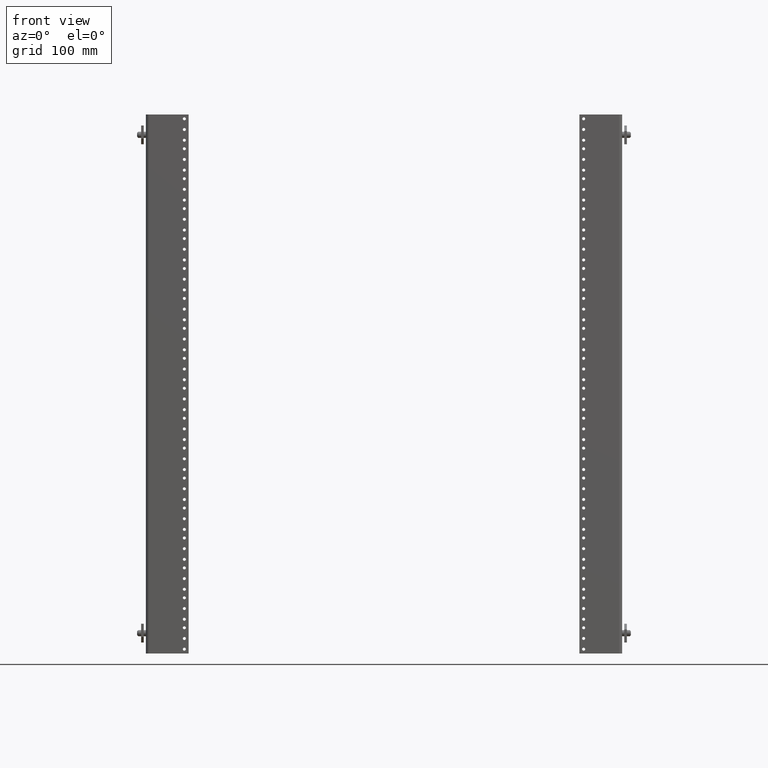
[diagram: clean part render]
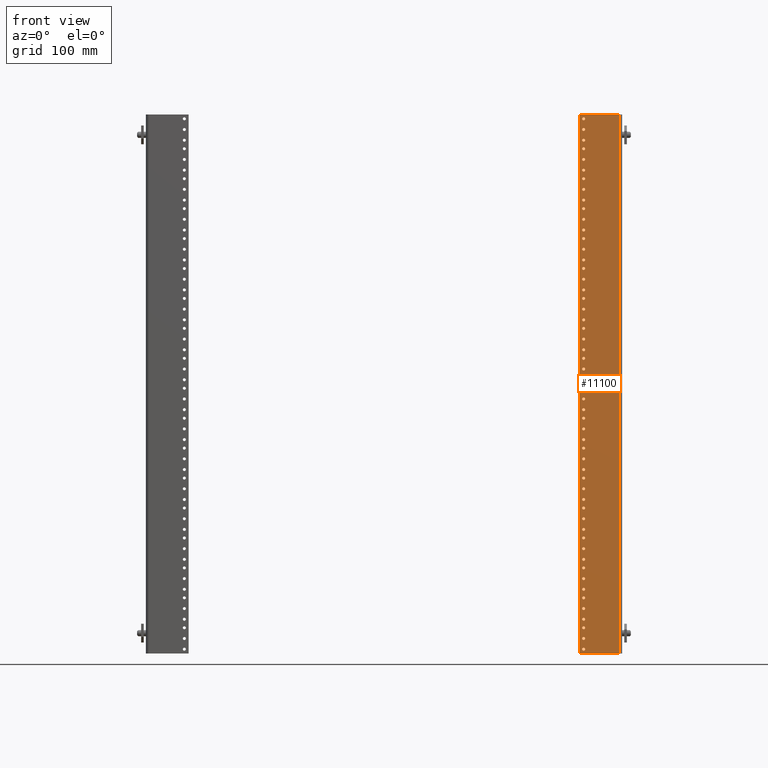
[diagram: same view with one face highlighted and labeled with its STEP entity id]
A machine part, front view. The second image highlights one B-rep face of the part: STEP entity #11100.
In plain terms, the highlighted planar face has unit normal (-0, -1, 0).
Its self-contained STEP definition (entity closure, byte-faithful):
#27 = CARTESIAN_POINT ( 'NONE',  ( -1.000000000000000444, 5.551115123125765446E-17, -15.50000000000000000 ) ) ;
#32 = AXIS2_PLACEMENT_3D ( 'NONE', #12321, #2258, #1278 ) ;
#46 = CIRCLE ( 'NONE', #12633, 0.08850000000000002309 ) ;
#48 = AXIS2_PLACEMENT_3D ( 'NONE', #3129, #2266, #361 ) ;
#80 = DIRECTION ( 'NONE',  ( 1.000000000000000000, -5.551115123125782702E-17, 0.0000000000000000000 ) ) ;
#81 = CIRCLE ( 'NONE', #12071, 0.08850000000000002309 ) ;
#87 = CARTESIAN_POINT ( 'NONE',  ( -1.088499999999999579, 6.042388811522425693E-17, 13.12500000000000178 ) ) ;
#90 = CARTESIAN_POINT ( 'NONE',  ( -1.000000000000000222, 5.551115123125774074E-17, -6.125000000000000000 ) ) ;
#98 = EDGE_CURVE ( 'NONE', #9351, #4095, #1822, .T. ) ;
#99 = CARTESIAN_POINT ( 'NONE',  ( -0.9999999999999998890, 5.551115123125782702E-17, 2.000000000000000000 ) ) ;
#100 = EDGE_CURVE ( 'NONE', #3046, #482, #6242, .T. ) ;
#101 = CARTESIAN_POINT ( 'NONE',  ( -0.9999999999999995559, 5.551115123125791330E-17, 10.25000000000000178 ) ) ;
#113 = DIRECTION ( 'NONE',  ( 5.551115123125780237E-17, 1.000000000000000000, -1.191965662373347779E-32 ) ) ;
#144 = ORIENTED_EDGE ( 'NONE', *, *, #12178, .T. ) ;
#152 = CARTESIAN_POINT ( 'NONE',  ( -0.9999999999999998890, 5.551115123125782702E-17, 2.000000000000000000 ) ) ;
#162 = DIRECTION ( 'NONE',  ( 5.551115123125780237E-17, 1.000000000000000000, -1.191965662373347779E-32 ) ) ;
#176 = EDGE_LOOP ( 'NONE', ( #2324, #5124 ) ) ;
#181 = CIRCLE ( 'NONE', #4814, 0.08850000000000002309 ) ;
#216 = AXIS2_PLACEMENT_3D ( 'NONE', #10849, #9877, #4759 ) ;
#230 = DIRECTION ( 'NONE',  ( 1.000000000000000000, -5.551115123125782702E-17, 0.0000000000000000000 ) ) ;
#236 = FACE_BOUND ( 'NONE', #12782, .T. ) ;
#237 = CARTESIAN_POINT ( 'NONE',  ( -1.088500000000000467, 6.042388811522399808E-17, -12.00000000000000178 ) ) ;
#247 = AXIS2_PLACEMENT_3D ( 'NONE', #2631, #11574, #4417 ) ;
#290 = CARTESIAN_POINT ( 'NONE',  ( -1.088500000000000023, 6.042388811522412134E-17, -0.2500000000000007772 ) ) ;
#304 = CARTESIAN_POINT ( 'NONE',  ( -0.9999999999999996669, 5.551115123125786400E-17, 6.125000000000000000 ) ) ;
#324 = DIRECTION ( 'NONE',  ( 5.551115123125780237E-17, 1.000000000000000000, -1.191965662373347779E-32 ) ) ;
#326 = ORIENTED_EDGE ( 'NONE', *, *, #10250, .T. ) ;
#327 = DIRECTION ( 'NONE',  ( 1.000000000000000000, -5.551115123125782702E-17, 0.0000000000000000000 ) ) ;
#354 = FACE_BOUND ( 'NONE', #1442, .T. ) ;
#360 = EDGE_CURVE ( 'NONE', #6692, #3098, #10453, .T. ) ;
#361 = DIRECTION ( 'NONE',  ( 1.000000000000000000, -5.551115123125782702E-17, 0.0000000000000000000 ) ) ;
#374 = VERTEX_POINT ( 'NONE', #4691 ) ;
#384 = DIRECTION ( 'NONE',  ( 5.551115123125780237E-17, 1.000000000000000000, -1.191965662373347779E-32 ) ) ;
#407 = VERTEX_POINT ( 'NONE', #12569 ) ;
#438 = AXIS2_PLACEMENT_3D ( 'NONE', #2818, #3675, #9718 ) ;
#441 = AXIS2_PLACEMENT_3D ( 'NONE', #4253, #8257, #11259 ) ;
#468 = EDGE_LOOP ( 'NONE', ( #3253, #1877 ) ) ;
#482 = VERTEX_POINT ( 'NONE', #8504 ) ;
#488 = CARTESIAN_POINT ( 'NONE',  ( -0.9999999999999996669, 5.551115123125786400E-17, 6.125000000000000000 ) ) ;
#496 = EDGE_LOOP ( 'NONE', ( #8227, #7091 ) ) ;
#525 = ORIENTED_EDGE ( 'NONE', *, *, #2054, .T. ) ;
#579 = EDGE_LOOP ( 'NONE', ( #5538, #1067 ) ) ;
#586 = CARTESIAN_POINT ( 'NONE',  ( -0.9114999999999995328, 5.059841434729160049E-17, 11.37500000000000178 ) ) ;
#595 = DIRECTION ( 'NONE',  ( 1.000000000000000000, -5.551115123125782702E-17, 0.0000000000000000000 ) ) ;
#597 = CIRCLE ( 'NONE', #11304, 0.08850000000000002309 ) ;
#606 = DIRECTION ( 'NONE',  ( 5.551115123125780237E-17, 1.000000000000000000, -1.191965662373347779E-32 ) ) ;
#635 = EDGE_CURVE ( 'NONE', #3907, #6879, #1435, .T. ) ;
#643 = CIRCLE ( 'NONE', #6741, 0.08850000000000002309 ) ;
#650 = VERTEX_POINT ( 'NONE', #1656 ) ;
#652 = AXIS2_PLACEMENT_3D ( 'NONE', #27, #1138, #3106 ) ;
#659 = AXIS2_PLACEMENT_3D ( 'NONE', #4368, #3264, #4315 ) ;
#677 = EDGE_CURVE ( 'NONE', #11862, #1798, #9406, .T. ) ;
#679 = CARTESIAN_POINT ( 'NONE',  ( -0.9999999999999996669, 5.551115123125788865E-17, 9.000000000000000000 ) ) ;
#721 = DIRECTION ( 'NONE',  ( 5.551115123125780237E-17, 1.000000000000000000, -1.191965662373347779E-32 ) ) ;
#731 = EDGE_LOOP ( 'NONE', ( #2820, #2026 ) ) ;
#735 = DIRECTION ( 'NONE',  ( 1.000000000000000000, -5.551115123125782702E-17, 0.0000000000000000000 ) ) ;
#739 = DIRECTION ( 'NONE',  ( 5.551115123125780237E-17, 1.000000000000000000, -1.191965662373347779E-32 ) ) ;
#787 = CARTESIAN_POINT ( 'NONE',  ( -0.9999999999999996669, 5.551115123125787632E-17, 7.875000000000000888 ) ) ;
#790 = VERTEX_POINT ( 'NONE', #2048 ) ;
#818 = VERTEX_POINT ( 'NONE', #4966 ) ;
#826 = CIRCLE ( 'NONE', #2310, 0.08850000000000002309 ) ;
#830 = DIRECTION ( 'NONE',  ( 5.551115123125780237E-17, 1.000000000000000000, -1.191965662373347779E-32 ) ) ;
#835 = AXIS2_PLACEMENT_3D ( 'NONE', #2207, #1094, #2143 ) ;
#841 = EDGE_CURVE ( 'NONE', #11187, #10107, #6470, .T. ) ;
#852 = CARTESIAN_POINT ( 'NONE',  ( -0.9999999999999994449, 5.551115123125795028E-17, 14.87500000000000178 ) ) ;
#858 = AXIS2_PLACEMENT_3D ( 'NONE', #6507, #13008, #1959 ) ;
#860 = AXIS2_PLACEMENT_3D ( 'NONE', #6942, #6872, #4647 ) ;
#870 = VERTEX_POINT ( 'NONE', #5098 ) ;
#873 = VERTEX_POINT ( 'NONE', #9097 ) ;
#885 = CIRCLE ( 'NONE', #12226, 0.08850000000000002309 ) ;
#905 = VERTEX_POINT ( 'NONE', #3177 ) ;
#906 = FACE_BOUND ( 'NONE', #4832, .T. ) ;
#911 = AXIS2_PLACEMENT_3D ( 'NONE', #2060, #10084, #230 ) ;
#919 = ORIENTED_EDGE ( 'NONE', *, *, #5434, .T. ) ;
#945 = DIRECTION ( 'NONE',  ( 5.551115123125780237E-17, 1.000000000000000000, -1.191965662373347779E-32 ) ) ;
#952 = EDGE_LOOP ( 'NONE', ( #4693, #12476 ) ) ;
#967 = FACE_BOUND ( 'NONE', #3131, .T. ) ;
#970 = VERTEX_POINT ( 'NONE', #12308 ) ;
#974 = ORIENTED_EDGE ( 'NONE', *, *, #5425, .T. ) ;
#977 = DIRECTION ( 'NONE',  ( 5.551115123125780237E-17, 1.000000000000000000, -1.191965662373347779E-32 ) ) ;
#983 = EDGE_CURVE ( 'NONE', #1847, #9017, #181, .T. ) ;
#1000 = DIRECTION ( 'NONE',  ( 1.000000000000000000, -5.551115123125782702E-17, 0.0000000000000000000 ) ) ;
#1012 = DIRECTION ( 'NONE',  ( 1.000000000000000000, -5.551115123125782702E-17, 0.0000000000000000000 ) ) ;
#1018 = DIRECTION ( 'NONE',  ( 1.000000000000000000, -5.551115123125782702E-17, 0.0000000000000000000 ) ) ;
#1028 = FACE_BOUND ( 'NONE', #8023, .T. ) ;
#1036 = ORIENTED_EDGE ( 'NONE', *, *, #3330, .T. ) ;
#1042 = EDGE_CURVE ( 'NONE', #12983, #6583, #2694, .T. ) ;
#1055 = AXIS2_PLACEMENT_3D ( 'NONE', #488, #8635, #7650 ) ;
#1067 = ORIENTED_EDGE ( 'NONE', *, *, #1677, .T. ) ;
#1072 = DIRECTION ( 'NONE',  ( 5.551115123125780237E-17, 1.000000000000000000, -1.191965662373347779E-32 ) ) ;
#1073 = CIRCLE ( 'NONE', #7995, 0.08850000000000002309 ) ;
#1091 = DIRECTION ( 'NONE',  ( 5.551115123125780237E-17, 1.000000000000000000, -1.191965662373347779E-32 ) ) ;
#1094 = DIRECTION ( 'NONE',  ( 5.551115123125780237E-17, 1.000000000000000000, -1.191965662373347779E-32 ) ) ;
#1099 = ORIENTED_EDGE ( 'NONE', *, *, #3975, .T. ) ;
#1127 = ORIENTED_EDGE ( 'NONE', *, *, #10310, .T. ) ;
#1135 = DIRECTION ( 'NONE',  ( 1.000000000000000000, -5.551115123125782702E-17, 0.0000000000000000000 ) ) ;
#1138 = DIRECTION ( 'NONE',  ( 5.551115123125780237E-17, 1.000000000000000000, -1.191965662373347779E-32 ) ) ;
#1142 = CIRCLE ( 'NONE', #8487, 0.08850000000000002309 ) ;
#1149 = DIRECTION ( 'NONE',  ( 1.000000000000000000, -5.551115123125780853E-17, -3.431425595409359776E-17 ) ) ;
#1161 = VERTEX_POINT ( 'NONE', #8682 ) ;
#1172 = DIRECTION ( 'NONE',  ( 5.551115123125780237E-17, 1.000000000000000000, -1.191965662373347779E-32 ) ) ;
#1212 = DIRECTION ( 'NONE',  ( 1.000000000000000000, -5.551115123125782702E-17, 0.0000000000000000000 ) ) ;
#1216 = CARTESIAN_POINT ( 'NONE',  ( -0.9115000000000001990, 5.059841434729142177E-17, -6.125000000000000000 ) ) ;
#1231 = EDGE_LOOP ( 'NONE', ( #9482, #11433 ) ) ;
#1240 = CARTESIAN_POINT ( 'NONE',  ( -1.088500000000000245, 6.042388811522407204E-17, -5.000000000000000000 ) ) ;
#1243 = EDGE_CURVE ( 'NONE', #1161, #5385, #11722, .T. ) ;
#1249 = ORIENTED_EDGE ( 'NONE', *, *, #8819, .T. ) ;
#1260 = DIRECTION ( 'NONE',  ( 5.551115123125780237E-17, 1.000000000000000000, -1.191965662373347779E-32 ) ) ;
#1261 = DIRECTION ( 'NONE',  ( 5.551115123125780237E-17, 1.000000000000000000, -1.191965662373347779E-32 ) ) ;
#1263 = CIRCLE ( 'NONE', #12392, 0.08850000000000002309 ) ;
#1274 = CIRCLE ( 'NONE', #2952, 0.08850000000000002309 ) ;
#1278 = DIRECTION ( 'NONE',  ( 1.000000000000000000, -5.551115123125780853E-17, -3.431425595409359776E-17 ) ) ;
#1279 = DIRECTION ( 'NONE',  ( 1.000000000000000000, -5.551115123125782702E-17, 0.0000000000000000000 ) ) ;
#1289 = AXIS2_PLACEMENT_3D ( 'NONE', #12322, #7459, #1279 ) ;
#1293 = ORIENTED_EDGE ( 'NONE', *, *, #6499, .T. ) ;
#1297 = AXIS2_PLACEMENT_3D ( 'NONE', #6607, #9497, #10610 ) ;
#1298 = CIRCLE ( 'NONE', #5710, 0.08850000000000002309 ) ;
#1320 = ORIENTED_EDGE ( 'NONE', *, *, #4923, .T. ) ;
#1346 = FACE_BOUND ( 'NONE', #12743, .T. ) ;
#1385 = DIRECTION ( 'NONE',  ( 1.000000000000000000, -5.551115123125782702E-17, 0.0000000000000000000 ) ) ;
#1397 = EDGE_CURVE ( 'NONE', #6092, #8004, #6502, .T. ) ;
#1404 = DIRECTION ( 'NONE',  ( 1.000000000000000000, -5.551115123125782702E-17, 0.0000000000000000000 ) ) ;
#1425 = DIRECTION ( 'NONE',  ( 1.000000000000000000, -5.551115123125782702E-17, 0.0000000000000000000 ) ) ;
#1428 = CARTESIAN_POINT ( 'NONE',  ( -0.9114999999999996438, 5.059841434729158200E-17, 9.625000000000000000 ) ) ;
#1435 = CIRCLE ( 'NONE', #1639, 0.08850000000000002309 ) ;
#1439 = CIRCLE ( 'NONE', #6485, 0.08850000000000002309 ) ;
#1442 = EDGE_LOOP ( 'NONE', ( #9876, #11113 ) ) ;
#1459 = ORIENTED_EDGE ( 'NONE', *, *, #8731, .T. ) ;
#1473 = DIRECTION ( 'NONE',  ( 1.000000000000000000, -5.551115123125782702E-17, 0.0000000000000000000 ) ) ;
#1486 = CARTESIAN_POINT ( 'NONE',  ( -1.088499999999999801, 6.042388811522417065E-17, 5.500000000000000000 ) ) ;
#1507 = CIRCLE ( 'NONE', #6548, 0.08850000000000002309 ) ;
#1511 = CIRCLE ( 'NONE', #10739, 0.08850000000000002309 ) ;
#1531 = DIRECTION ( 'NONE',  ( 1.000000000000000000, -5.551115123125782702E-17, 0.0000000000000000000 ) ) ;
#1544 = VERTEX_POINT ( 'NONE', #11601 ) ;
#1551 = CARTESIAN_POINT ( 'NONE',  ( -0.9999999999999995559, 5.551115123125791330E-17, 11.37500000000000178 ) ) ;
#1558 = DIRECTION ( 'NONE',  ( 1.000000000000000000, -5.551115123125782702E-17, 0.0000000000000000000 ) ) ;
#1639 = AXIS2_PLACEMENT_3D ( 'NONE', #7648, #10732, #8830 ) ;
#1653 = ORIENTED_EDGE ( 'NONE', *, *, #5557, .T. ) ;
#1656 = CARTESIAN_POINT ( 'NONE',  ( -1.088499999999999579, 6.042388811522423228E-17, 11.37500000000000178 ) ) ;
#1659 = DIRECTION ( 'NONE',  ( 5.551115123125780237E-17, 1.000000000000000000, -1.191965662373347779E-32 ) ) ;
#1662 = DIRECTION ( 'NONE',  ( 1.000000000000000000, -5.551115123125782702E-17, 0.0000000000000000000 ) ) ;
#1677 = EDGE_CURVE ( 'NONE', #5090, #4461, #7757, .T. ) ;
#1706 = VERTEX_POINT ( 'NONE', #5889 ) ;
#1715 = AXIS2_PLACEMENT_3D ( 'NONE', #3284, #384, #12157 ) ;
#1722 = CARTESIAN_POINT ( 'NONE',  ( -1.000000000000000444, 5.551115123125769760E-17, -10.25000000000000178 ) ) ;
#1737 = EDGE_CURVE ( 'NONE', #5947, #9020, #2090, .T. ) ;
#1752 = DIRECTION ( 'NONE',  ( 1.000000000000000000, -5.551115123125782702E-17, 0.0000000000000000000 ) ) ;
#1755 = AXIS2_PLACEMENT_3D ( 'NONE', #1722, #2698, #10724 ) ;
#1759 = DIRECTION ( 'NONE',  ( 1.000000000000000000, -5.551115123125782702E-17, 0.0000000000000000000 ) ) ;
#1776 = EDGE_LOOP ( 'NONE', ( #4261, #6343 ) ) ;
#1783 = EDGE_CURVE ( 'NONE', #10120, #3735, #6085, .T. ) ;
#1786 = DIRECTION ( 'NONE',  ( 5.551115123125780237E-17, 1.000000000000000000, -1.191965662373347779E-32 ) ) ;
#1792 = DIRECTION ( 'NONE',  ( 1.000000000000000000, -5.551115123125782702E-17, 0.0000000000000000000 ) ) ;
#1798 = VERTEX_POINT ( 'NONE', #12986 ) ;
#1799 = EDGE_CURVE ( 'NONE', #7572, #5903, #9438, .T. ) ;
#1822 = CIRCLE ( 'NONE', #4997, 0.08850000000000002309 ) ;
#1832 = CARTESIAN_POINT ( 'NONE',  ( -1.088500000000000245, 6.042388811522404739E-17, -7.875000000000000888 ) ) ;
#1847 = VERTEX_POINT ( 'NONE', #5308 ) ;
#1865 = LINE ( 'NONE', #12929, #10942 ) ;
#1875 = ORIENTED_EDGE ( 'NONE', *, *, #12496, .T. ) ;
#1877 = ORIENTED_EDGE ( 'NONE', *, *, #2367, .T. ) ;
#1885 = FACE_BOUND ( 'NONE', #731, .T. ) ;
#1886 = CARTESIAN_POINT ( 'NONE',  ( -0.9999999999999994449, 5.551115123125795028E-17, 15.50000000000000000 ) ) ;
#1895 = CIRCLE ( 'NONE', #858, 0.08850000000000002309 ) ;
#1918 = CARTESIAN_POINT ( 'NONE',  ( -0.9999999999999996669, 5.551115123125787632E-17, 6.750000000000000000 ) ) ;
#1949 = VERTEX_POINT ( 'NONE', #12460 ) ;
#1951 = EDGE_LOOP ( 'NONE', ( #5195, #1293 ) ) ;
#1955 = FACE_BOUND ( 'NONE', #1231, .T. ) ;
#1956 = CARTESIAN_POINT ( 'NONE',  ( -0.9115000000000000879, 5.059841434729145874E-17, -2.000000000000000000 ) ) ;
#1959 = DIRECTION ( 'NONE',  ( 1.000000000000000000, -5.551115123125782702E-17, 0.0000000000000000000 ) ) ;
#1963 = DIRECTION ( 'NONE',  ( 1.000000000000000000, -5.551115123125782702E-17, 0.0000000000000000000 ) ) ;
#1965 = VERTEX_POINT ( 'NONE', #11402 ) ;
#1969 = DIRECTION ( 'NONE',  ( 1.000000000000000000, -5.551115123125782702E-17, 0.0000000000000000000 ) ) ;
#1972 = CARTESIAN_POINT ( 'NONE',  ( -1.088500000000000023, 6.042388811522412134E-17, 0.2500000000000008327 ) ) ;
#1993 = EDGE_CURVE ( 'NONE', #10117, #818, #8389, .T. ) ;
#2003 = DIRECTION ( 'NONE',  ( 1.000000000000000000, -5.551115123125782702E-17, 0.0000000000000000000 ) ) ;
#2017 = FACE_BOUND ( 'NONE', #2679, .T. ) ;
#2026 = ORIENTED_EDGE ( 'NONE', *, *, #9374, .T. ) ;
#2032 = CARTESIAN_POINT ( 'NONE',  ( -0.9114999999999996438, 5.059841434729154503E-17, 6.125000000000000000 ) ) ;
#2048 = CARTESIAN_POINT ( 'NONE',  ( -1.088500000000000467, 6.042388811522397343E-17, -15.50000000000000000 ) ) ;
#2054 = EDGE_CURVE ( 'NONE', #6112, #11892, #10503, .T. ) ;
#2060 = CARTESIAN_POINT ( 'NONE',  ( -0.9999999999999995559, 5.551115123125793795E-17, 13.12500000000000178 ) ) ;
#2071 = CARTESIAN_POINT ( 'NONE',  ( -1.000000000000000222, 5.551115123125777155E-17, -3.250000000000000000 ) ) ;
#2080 = EDGE_CURVE ( 'NONE', #7005, #650, #1263, .T. ) ;
#2087 = DIRECTION ( 'NONE',  ( 5.551115123125780237E-17, 1.000000000000000000, -1.191965662373347779E-32 ) ) ;
#2090 = CIRCLE ( 'NONE', #12183, 0.08850000000000002309 ) ;
#2095 = DIRECTION ( 'NONE',  ( 5.551115123125780237E-17, 1.000000000000000000, -1.191965662373347779E-32 ) ) ;
#2109 = VERTEX_POINT ( 'NONE', #1240 ) ;
#2111 = CARTESIAN_POINT ( 'NONE',  ( -1.088500000000000245, 6.042388811522403506E-17, -8.500000000000000000 ) ) ;
#2113 = ORIENTED_EDGE ( 'NONE', *, *, #11271, .T. ) ;
#2143 = DIRECTION ( 'NONE',  ( 1.000000000000000000, -5.551115123125782702E-17, 0.0000000000000000000 ) ) ;
#2153 = DIRECTION ( 'NONE',  ( 1.000000000000000000, -5.551115123125782702E-17, 0.0000000000000000000 ) ) ;
#2158 = LINE ( 'NONE', #4191, #9191 ) ;
#2205 = AXIS2_PLACEMENT_3D ( 'NONE', #12921, #739, #1792 ) ;
#2207 = CARTESIAN_POINT ( 'NONE',  ( -0.9999999999999996669, 5.551115123125787632E-17, 7.250000000000000888 ) ) ;
#2229 = CARTESIAN_POINT ( 'NONE',  ( -1.000000000000000222, 5.551115123125774074E-17, -6.125000000000000000 ) ) ;
#2230 = EDGE_CURVE ( 'NONE', #1544, #4044, #7354, .T. ) ;
#2239 = EDGE_LOOP ( 'NONE', ( #1099, #11567 ) ) ;
#2258 = DIRECTION ( 'NONE',  ( -5.551115123125780853E-17, -1.000000000000000000, 1.191965662373347779E-32 ) ) ;
#2260 = CARTESIAN_POINT ( 'NONE',  ( -0.9999999999999995559, 5.551115123125791330E-17, 10.25000000000000178 ) ) ;
#2266 = DIRECTION ( 'NONE',  ( 5.551115123125780237E-17, 1.000000000000000000, -1.191965662373347779E-32 ) ) ;
#2284 = EDGE_LOOP ( 'NONE', ( #11972, #7050 ) ) ;
#2301 = VERTEX_POINT ( 'NONE', #4674 ) ;
#2310 = AXIS2_PLACEMENT_3D ( 'NONE', #10260, #7190, #8236 ) ;
#2320 = EDGE_CURVE ( 'NONE', #4988, #9088, #10926, .T. ) ;
#2324 = ORIENTED_EDGE ( 'NONE', *, *, #11299, .T. ) ;
#2330 = DIRECTION ( 'NONE',  ( 1.000000000000000000, -5.551115123125782702E-17, 0.0000000000000000000 ) ) ;
#2348 = DIRECTION ( 'NONE',  ( 5.551115123125780237E-17, 1.000000000000000000, -1.191965662373347779E-32 ) ) ;
#2356 = CARTESIAN_POINT ( 'NONE',  ( -0.9115000000000000879, 5.059841434729144026E-17, -4.375000000000000000 ) ) ;
#2363 = CARTESIAN_POINT ( 'NONE',  ( -0.9114999999999999769, 5.059841434729147107E-17, -1.500000000000000222 ) ) ;
#2367 = EDGE_CURVE ( 'NONE', #3098, #6692, #1274, .T. ) ;
#2378 = CARTESIAN_POINT ( 'NONE',  ( -0.9999999999999998890, 5.551115123125785167E-17, 5.500000000000000000 ) ) ;
#2464 = DIRECTION ( 'NONE',  ( 1.000000000000000000, -5.551115123125782702E-17, 0.0000000000000000000 ) ) ;
#2490 = ORIENTED_EDGE ( 'NONE', *, *, #11391, .T. ) ;
#2506 = DIRECTION ( 'NONE',  ( 1.000000000000000000, -5.551115123125782702E-17, 0.0000000000000000000 ) ) ;
#2514 = AXIS2_PLACEMENT_3D ( 'NONE', #11870, #3063, #2003 ) ;
#2531 = AXIS2_PLACEMENT_3D ( 'NONE', #304, #8313, #2330 ) ;
#2551 = AXIS2_PLACEMENT_3D ( 'NONE', #11897, #5005, #6905 ) ;
#2556 = CIRCLE ( 'NONE', #10318, 0.08850000000000002309 ) ;
#2586 = DIRECTION ( 'NONE',  ( 1.000000000000000000, -5.551115123125782702E-17, 0.0000000000000000000 ) ) ;
#2587 = CARTESIAN_POINT ( 'NONE',  ( -0.9999999999999995559, 5.551115123125791330E-17, 11.37500000000000178 ) ) ;
#2593 = DIRECTION ( 'NONE',  ( 5.551115123125780237E-17, 1.000000000000000000, -1.191965662373347779E-32 ) ) ;
#2603 = CARTESIAN_POINT ( 'NONE',  ( -0.9114999999999999769, 5.059841434729150188E-17, 1.500000000000000222 ) ) ;
#2605 = EDGE_CURVE ( 'NONE', #11684, #10652, #1895, .T. ) ;
#2631 = CARTESIAN_POINT ( 'NONE',  ( -1.000000000000000444, 5.551115123125765446E-17, -14.87500000000000178 ) ) ;
#2654 = CARTESIAN_POINT ( 'NONE',  ( -1.088500000000000245, 6.042388811522403506E-17, -9.000000000000000000 ) ) ;
#2659 = VERTEX_POINT ( 'NONE', #7938 ) ;
#2679 = EDGE_LOOP ( 'NONE', ( #3241, #7377 ) ) ;
#2694 = CIRCLE ( 'NONE', #6487, 0.08850000000000002309 ) ;
#2698 = DIRECTION ( 'NONE',  ( 5.551115123125780237E-17, 1.000000000000000000, -1.191965662373347779E-32 ) ) ;
#2734 = CARTESIAN_POINT ( 'NONE',  ( -0.9999999999999995559, 5.551115123125793795E-17, 13.75000000000000000 ) ) ;
#2758 = CIRCLE ( 'NONE', #9066, 0.08850000000000002309 ) ;
#2760 = ORIENTED_EDGE ( 'NONE', *, *, #9040, .T. ) ;
#2764 = AXIS2_PLACEMENT_3D ( 'NONE', #3660, #7536, #10564 ) ;
#2770 = VECTOR ( 'NONE', #8889, 39.37007874015748143 ) ;
#2776 = EDGE_LOOP ( 'NONE', ( #12567, #3544 ) ) ;
#2789 = CARTESIAN_POINT ( 'NONE',  ( -0.9999999999999996669, 5.551115123125788865E-17, 8.500000000000000000 ) ) ;
#2804 = DIRECTION ( 'NONE',  ( 5.551115123125780237E-17, 1.000000000000000000, -1.191965662373347779E-32 ) ) ;
#2810 = CIRCLE ( 'NONE', #10366, 0.08850000000000002309 ) ;
#2818 = CARTESIAN_POINT ( 'NONE',  ( -1.000000000000000444, 5.551115123125768527E-17, -12.00000000000000178 ) ) ;
#2820 = ORIENTED_EDGE ( 'NONE', *, *, #12740, .T. ) ;
#2827 = CIRCLE ( 'NONE', #4722, 0.08850000000000002309 ) ;
#2847 = CARTESIAN_POINT ( 'NONE',  ( -1.088500000000000245, 6.042388811522402273E-17, -9.625000000000000000 ) ) ;
#2849 = DIRECTION ( 'NONE',  ( 1.000000000000000000, -5.551115123125782702E-17, 0.0000000000000000000 ) ) ;
#2853 = DIRECTION ( 'NONE',  ( 5.551115123125780237E-17, 1.000000000000000000, -1.191965662373347779E-32 ) ) ;
#2858 = DIRECTION ( 'NONE',  ( 3.431425595409359776E-17, 1.001483277207770012E-32, 1.000000000000000000 ) ) ;
#2924 = DIRECTION ( 'NONE',  ( 5.551115123125780237E-17, 1.000000000000000000, -1.191965662373347779E-32 ) ) ;
#2944 = FACE_BOUND ( 'NONE', #3630, .T. ) ;
#2952 = AXIS2_PLACEMENT_3D ( 'NONE', #8937, #9920, #4936 ) ;
#2959 = EDGE_LOOP ( 'NONE', ( #4881, #10029 ) ) ;
#2968 = CIRCLE ( 'NONE', #4653, 0.08850000000000002309 ) ;
#2970 = CARTESIAN_POINT ( 'NONE',  ( -1.088499999999999357, 6.042388811522426925E-17, 14.87500000000000178 ) ) ;
#2971 = AXIS2_PLACEMENT_3D ( 'NONE', #5033, #11997, #5107 ) ;
#2973 = AXIS2_PLACEMENT_3D ( 'NONE', #10263, #1261, #9098 ) ;
#2975 = CARTESIAN_POINT ( 'NONE',  ( -0.9115000000000001990, 5.059841434729138479E-17, -9.625000000000000000 ) ) ;
#2985 = AXIS2_PLACEMENT_3D ( 'NONE', #1886, #830, #6031 ) ;
#2988 = AXIS2_PLACEMENT_3D ( 'NONE', #7538, #9707, #1558 ) ;
#3011 = ORIENTED_EDGE ( 'NONE', *, *, #8638, .T. ) ;
#3014 = FACE_BOUND ( 'NONE', #579, .T. ) ;
#3018 = EDGE_CURVE ( 'NONE', #4461, #5090, #7796, .T. ) ;
#3030 = CARTESIAN_POINT ( 'NONE',  ( -1.000000000000000444, 5.551115123125768527E-17, -12.00000000000000178 ) ) ;
#3045 = DIRECTION ( 'NONE',  ( 5.551115123125780237E-17, 1.000000000000000000, -1.191965662373347779E-32 ) ) ;
#3046 = VERTEX_POINT ( 'NONE', #7865 ) ;
#3048 = VERTEX_POINT ( 'NONE', #7017 ) ;
#3063 = DIRECTION ( 'NONE',  ( 5.551115123125780237E-17, 1.000000000000000000, -1.191965662373347779E-32 ) ) ;
#3098 = VERTEX_POINT ( 'NONE', #6023 ) ;
#3099 = CARTESIAN_POINT ( 'NONE',  ( -0.9115000000000005320, 5.059841434729133548E-17, -15.50000000000000000 ) ) ;
#3106 = DIRECTION ( 'NONE',  ( 1.000000000000000000, -5.551115123125782702E-17, 0.0000000000000000000 ) ) ;
#3121 = CARTESIAN_POINT ( 'NONE',  ( -1.088499999999999801, 6.042388811522420762E-17, 9.000000000000000000 ) ) ;
#3129 = CARTESIAN_POINT ( 'NONE',  ( -0.9999999999999994449, 5.551115123125795028E-17, 14.25000000000000000 ) ) ;
#3131 = EDGE_LOOP ( 'NONE', ( #3169, #5603 ) ) ;
#3140 = EDGE_CURVE ( 'NONE', #12400, #10726, #1298, .T. ) ;
#3142 = CIRCLE ( 'NONE', #9032, 0.08850000000000002309 ) ;
#3154 = CARTESIAN_POINT ( 'NONE',  ( -0.9115000000000000879, 5.059841434729145258E-17, -3.250000000000000000 ) ) ;
#3169 = ORIENTED_EDGE ( 'NONE', *, *, #5687, .T. ) ;
#3177 = CARTESIAN_POINT ( 'NONE',  ( -0.9114999999999999769, 5.059841434729148956E-17, 0.8750000000000001110 ) ) ;
#3204 = EDGE_CURVE ( 'NONE', #11450, #12055, #4451, .T. ) ;
#3216 = EDGE_CURVE ( 'NONE', #8723, #2301, #9483, .T. ) ;
#3222 = VERTEX_POINT ( 'NONE', #8262 ) ;
#3240 = ORIENTED_EDGE ( 'NONE', *, *, #100, .T. ) ;
#3241 = ORIENTED_EDGE ( 'NONE', *, *, #2080, .T. ) ;
#3245 = CARTESIAN_POINT ( 'NONE',  ( -0.9115000000000001990, 5.059841434729139095E-17, -9.000000000000000000 ) ) ;
#3250 = ORIENTED_EDGE ( 'NONE', *, *, #2605, .T. ) ;
#3253 = ORIENTED_EDGE ( 'NONE', *, *, #360, .T. ) ;
#3256 = EDGE_CURVE ( 'NONE', #11252, #6526, #12009, .T. ) ;
#3258 = FACE_BOUND ( 'NONE', #3360, .T. ) ;
#3264 = DIRECTION ( 'NONE',  ( 5.551115123125780237E-17, 1.000000000000000000, -1.191965662373347779E-32 ) ) ;
#3284 = CARTESIAN_POINT ( 'NONE',  ( -0.9999999999999996669, 5.551115123125788865E-17, 9.000000000000000000 ) ) ;
#3285 = DIRECTION ( 'NONE',  ( 5.551115123125780237E-17, 1.000000000000000000, -1.191965662373347779E-32 ) ) ;
#3307 = EDGE_LOOP ( 'NONE', ( #4712, #10326 ) ) ;
#3330 = EDGE_CURVE ( 'NONE', #6477, #9787, #1511, .T. ) ;
#3349 = AXIS2_PLACEMENT_3D ( 'NONE', #99, #1072, #6256 ) ;
#3360 = EDGE_LOOP ( 'NONE', ( #8364, #10067 ) ) ;
#3369 = CARTESIAN_POINT ( 'NONE',  ( -1.000000000000000222, 5.551115123125775307E-17, -5.000000000000000000 ) ) ;
#3385 = DIRECTION ( 'NONE',  ( 5.551115123125780237E-17, 1.000000000000000000, -1.191965662373347779E-32 ) ) ;
#3398 = AXIS2_PLACEMENT_3D ( 'NONE', #6724, #7708, #6007 ) ;
#3449 = EDGE_CURVE ( 'NONE', #5343, #7274, #46, .T. ) ;
#3481 = EDGE_CURVE ( 'NONE', #6526, #11252, #6969, .T. ) ;
#3512 = AXIS2_PLACEMENT_3D ( 'NONE', #11167, #4388, #4199 ) ;
#3531 = VERTEX_POINT ( 'NONE', #9890 ) ;
#3544 = ORIENTED_EDGE ( 'NONE', *, *, #1799, .T. ) ;
#3545 = ORIENTED_EDGE ( 'NONE', *, *, #10021, .T. ) ;
#3551 = EDGE_CURVE ( 'NONE', #8004, #6092, #1073, .T. ) ;
#3594 = CARTESIAN_POINT ( 'NONE',  ( -0.9115000000000001990, 5.059841434729140328E-17, -8.500000000000000000 ) ) ;
#3613 = AXIS2_PLACEMENT_3D ( 'NONE', #11235, #9084, #80 ) ;
#3616 = AXIS2_PLACEMENT_3D ( 'NONE', #11551, #5453, #4471 ) ;
#3623 = CIRCLE ( 'NONE', #5315, 0.08850000000000002309 ) ;
#3630 = EDGE_LOOP ( 'NONE', ( #144, #11444 ) ) ;
#3638 = ORIENTED_EDGE ( 'NONE', *, *, #7821, .T. ) ;
#3647 = CIRCLE ( 'NONE', #4075, 0.08850000000000002309 ) ;
#3650 = DIRECTION ( 'NONE',  ( 5.551115123125780237E-17, 1.000000000000000000, -1.191965662373347779E-32 ) ) ;
#3657 = DIRECTION ( 'NONE',  ( 5.551115123125780237E-17, 1.000000000000000000, -1.191965662373347779E-32 ) ) ;
#3660 = CARTESIAN_POINT ( 'NONE',  ( -0.9999999999999996669, 5.551115123125790098E-17, 9.625000000000000000 ) ) ;
#3675 = DIRECTION ( 'NONE',  ( 5.551115123125780237E-17, 1.000000000000000000, -1.191965662373347779E-32 ) ) ;
#3703 = DIRECTION ( 'NONE',  ( 1.000000000000000000, -5.551115123125782702E-17, 0.0000000000000000000 ) ) ;
#3734 = AXIS2_PLACEMENT_3D ( 'NONE', #1551, #3657, #5437 ) ;
#3735 = VERTEX_POINT ( 'NONE', #5848 ) ;
#3736 = EDGE_CURVE ( 'NONE', #4044, #1544, #4640, .T. ) ;
#3758 = ORIENTED_EDGE ( 'NONE', *, *, #98, .T. ) ;
#3762 = AXIS2_PLACEMENT_3D ( 'NONE', #8976, #11803, #9961 ) ;
#3786 = CIRCLE ( 'NONE', #4195, 0.08850000000000002309 ) ;
#3792 = ORIENTED_EDGE ( 'NONE', *, *, #9364, .T. ) ;
#3816 = ORIENTED_EDGE ( 'NONE', *, *, #9377, .T. ) ;
#3817 = DIRECTION ( 'NONE',  ( 5.551115123125780237E-17, 1.000000000000000000, -1.191965662373347779E-32 ) ) ;
#3835 = CIRCLE ( 'NONE', #3613, 0.08850000000000002309 ) ;
#3853 = EDGE_CURVE ( 'NONE', #970, #10841, #12023, .T. ) ;
#3863 = DIRECTION ( 'NONE',  ( 1.000000000000000000, -5.551115123125782702E-17, 0.0000000000000000000 ) ) ;
#3884 = EDGE_LOOP ( 'NONE', ( #10980, #6820 ) ) ;
#3892 = DIRECTION ( 'NONE',  ( 5.551115123125780237E-17, 1.000000000000000000, -1.191965662373347779E-32 ) ) ;
#3907 = VERTEX_POINT ( 'NONE', #11890 ) ;
#3914 = CARTESIAN_POINT ( 'NONE',  ( -0.9999999999999995559, 5.551115123125792563E-17, 12.00000000000000178 ) ) ;
#3929 = ORIENTED_EDGE ( 'NONE', *, *, #4766, .T. ) ;
#3938 = FACE_BOUND ( 'NONE', #5274, .T. ) ;
#3952 = LINE ( 'NONE', #7949, #2770 ) ;
#3965 = ORIENTED_EDGE ( 'NONE', *, *, #11452, .T. ) ;
#3970 = DIRECTION ( 'NONE',  ( 5.551115123125780237E-17, 1.000000000000000000, -1.191965662373347779E-32 ) ) ;
#3975 = EDGE_CURVE ( 'NONE', #11431, #11182, #2968, .T. ) ;
#3989 = DIRECTION ( 'NONE',  ( 1.000000000000000000, -5.551115123125782702E-17, 0.0000000000000000000 ) ) ;
#3991 = CARTESIAN_POINT ( 'NONE',  ( -1.088499999999999801, 6.042388811522419530E-17, 6.750000000000000000 ) ) ;
#4006 = FACE_BOUND ( 'NONE', #12189, .T. ) ;
#4018 = ORIENTED_EDGE ( 'NONE', *, *, #3216, .T. ) ;
#4039 = ORIENTED_EDGE ( 'NONE', *, *, #13002, .T. ) ;
#4044 = VERTEX_POINT ( 'NONE', #2356 ) ;
#4057 = DIRECTION ( 'NONE',  ( 1.000000000000000000, -5.551115123125782702E-17, 0.0000000000000000000 ) ) ;
#4061 = CARTESIAN_POINT ( 'NONE',  ( -0.9999999999999994449, 5.551115123125795028E-17, 14.25000000000000000 ) ) ;
#4075 = AXIS2_PLACEMENT_3D ( 'NONE', #7129, #5224, #6208 ) ;
#4076 = DIRECTION ( 'NONE',  ( -1.000000000000000000, 5.551115123125780853E-17, 3.431425595409359776E-17 ) ) ;
#4079 = AXIS2_PLACEMENT_3D ( 'NONE', #6786, #11907, #595 ) ;
#4095 = VERTEX_POINT ( 'NONE', #6298 ) ;
#4106 = DIRECTION ( 'NONE',  ( 5.551115123125780237E-17, 1.000000000000000000, -1.191965662373347779E-32 ) ) ;
#4114 = CARTESIAN_POINT ( 'NONE',  ( -1.088499999999999579, 6.042388811522425693E-17, 13.75000000000000000 ) ) ;
#4160 = DIRECTION ( 'NONE',  ( 1.000000000000000000, -5.551115123125782702E-17, 0.0000000000000000000 ) ) ;
#4163 = CARTESIAN_POINT ( 'NONE',  ( -1.088500000000000467, 6.042388811522401041E-17, -11.37500000000000178 ) ) ;
#4171 = DIRECTION ( 'NONE',  ( 1.000000000000000000, -5.551115123125782702E-17, 0.0000000000000000000 ) ) ;
#4181 = AXIS2_PLACEMENT_3D ( 'NONE', #4915, #5763, #7010 ) ;
#4191 = CARTESIAN_POINT ( 'NONE',  ( 1.250000000000000666, -6.938893903907209889E-17, 15.75000000000000178 ) ) ;
#4193 = AXIS2_PLACEMENT_3D ( 'NONE', #2260, #6273, #11709 ) ;
#4195 = AXIS2_PLACEMENT_3D ( 'NONE', #152, #4106, #5156 ) ;
#4196 = VERTEX_POINT ( 'NONE', #2970 ) ;
#4199 = DIRECTION ( 'NONE',  ( 1.000000000000000000, -5.551115123125782702E-17, 0.0000000000000000000 ) ) ;
#4205 = CARTESIAN_POINT ( 'NONE',  ( -1.088500000000000023, 6.042388811522413367E-17, 1.500000000000000222 ) ) ;
#4232 = CARTESIAN_POINT ( 'NONE',  ( -0.9115000000000005320, 5.059841434729134165E-17, -14.25000000000000000 ) ) ;
#4235 = AXIS2_PLACEMENT_3D ( 'NONE', #8574, #8385, #2464 ) ;
#4236 = DIRECTION ( 'NONE',  ( 5.551115123125780237E-17, 1.000000000000000000, -1.191965662373347779E-32 ) ) ;
#4252 = FACE_BOUND ( 'NONE', #952, .T. ) ;
#4253 = CARTESIAN_POINT ( 'NONE',  ( -1.000000000000000222, 5.551115123125772841E-17, -7.250000000000000888 ) ) ;
#4261 = ORIENTED_EDGE ( 'NONE', *, *, #4695, .T. ) ;
#4262 = DIRECTION ( 'NONE',  ( 5.551115123125780237E-17, 1.000000000000000000, -1.191965662373347779E-32 ) ) ;
#4274 = CARTESIAN_POINT ( 'NONE',  ( -0.9999999999999998890, 5.551115123125783935E-17, 3.750000000000000000 ) ) ;
#4296 = CARTESIAN_POINT ( 'NONE',  ( -1.088500000000000245, 6.042388811522404739E-17, -7.250000000000000888 ) ) ;
#4298 = DIRECTION ( 'NONE',  ( 1.000000000000000000, -5.551115123125782702E-17, 0.0000000000000000000 ) ) ;
#4308 = FACE_BOUND ( 'NONE', #1951, .T. ) ;
#4309 = CARTESIAN_POINT ( 'NONE',  ( -1.088499999999999801, 6.042388811522421995E-17, 9.625000000000000000 ) ) ;
#4315 = DIRECTION ( 'NONE',  ( 1.000000000000000000, -5.551115123125782702E-17, 0.0000000000000000000 ) ) ;
#4317 = DIRECTION ( 'NONE',  ( 1.000000000000000000, -5.551115123125782702E-17, 0.0000000000000000000 ) ) ;
#4318 = VERTEX_POINT ( 'NONE', #8092 ) ;
#4319 = ORIENTED_EDGE ( 'NONE', *, *, #11891, .T. ) ;
#4360 = FACE_BOUND ( 'NONE', #3884, .T. ) ;
#4366 = CIRCLE ( 'NONE', #3734, 0.08850000000000002309 ) ;
#4368 = CARTESIAN_POINT ( 'NONE',  ( -1.000000000000000444, 5.551115123125767295E-17, -13.12500000000000178 ) ) ;
#4374 = ORIENTED_EDGE ( 'NONE', *, *, #5781, .T. ) ;
#4378 = CIRCLE ( 'NONE', #11714, 0.08850000000000002309 ) ;
#4380 = CARTESIAN_POINT ( 'NONE',  ( -1.088500000000000245, 6.042388811522405971E-17, -6.125000000000000000 ) ) ;
#4388 = DIRECTION ( 'NONE',  ( 5.551115123125780237E-17, 1.000000000000000000, -1.191965662373347779E-32 ) ) ;
#4417 = DIRECTION ( 'NONE',  ( 1.000000000000000000, -5.551115123125782702E-17, 0.0000000000000000000 ) ) ;
#4424 = CIRCLE ( 'NONE', #6311, 0.08850000000000002309 ) ;
#4431 = DIRECTION ( 'NONE',  ( 1.000000000000000000, -5.551115123125782702E-17, 0.0000000000000000000 ) ) ;
#4434 = CARTESIAN_POINT ( 'NONE',  ( -0.9114999999999998659, 5.059841434729153886E-17, 5.000000000000000000 ) ) ;
#4451 = CIRCLE ( 'NONE', #48, 0.08850000000000002309 ) ;
#4456 = CARTESIAN_POINT ( 'NONE',  ( -0.9114999999999998659, 5.059841434729150805E-17, 2.000000000000000000 ) ) ;
#4461 = VERTEX_POINT ( 'NONE', #1428 ) ;
#4462 = VERTEX_POINT ( 'NONE', #10504 ) ;
#4465 = CARTESIAN_POINT ( 'NONE',  ( -1.000000000000000222, 5.551115123125775307E-17, -5.500000000000000000 ) ) ;
#4471 = DIRECTION ( 'NONE',  ( 1.000000000000000000, -5.551115123125782702E-17, 0.0000000000000000000 ) ) ;
#4506 = AXIS2_PLACEMENT_3D ( 'NONE', #90, #3045, #6000 ) ;
#4518 = CARTESIAN_POINT ( 'NONE',  ( -1.000000000000000000, 5.551115123125779621E-17, -0.8750000000000001110 ) ) ;
#4531 = VERTEX_POINT ( 'NONE', #6825 ) ;
#4608 = DIRECTION ( 'NONE',  ( 1.000000000000000000, -5.551115123125782702E-17, 0.0000000000000000000 ) ) ;
#4610 = CARTESIAN_POINT ( 'NONE',  ( -0.9114999999999995328, 5.059841434729161282E-17, 13.12500000000000178 ) ) ;
#4640 = CIRCLE ( 'NONE', #11989, 0.08850000000000002309 ) ;
#4647 = DIRECTION ( 'NONE',  ( 1.000000000000000000, -5.551115123125782702E-17, 0.0000000000000000000 ) ) ;
#4653 = AXIS2_PLACEMENT_3D ( 'NONE', #6975, #1172, #1963 ) ;
#4674 = CARTESIAN_POINT ( 'NONE',  ( -0.9114999999999998659, 5.059841434729151421E-17, 3.250000000000000000 ) ) ;
#4675 = AXIS2_PLACEMENT_3D ( 'NONE', #6178, #2087, #6035 ) ;
#4691 = CARTESIAN_POINT ( 'NONE',  ( -1.088499999999999801, 6.042388811522414599E-17, 2.625000000000000000 ) ) ;
#4693 = ORIENTED_EDGE ( 'NONE', *, *, #5254, .T. ) ;
#4695 = EDGE_CURVE ( 'NONE', #10726, #12400, #7167, .T. ) ;
#4706 = AXIS2_PLACEMENT_3D ( 'NONE', #9409, #10345, #1531 ) ;
#4712 = ORIENTED_EDGE ( 'NONE', *, *, #3736, .T. ) ;
#4722 = AXIS2_PLACEMENT_3D ( 'NONE', #3914, #945, #1662 ) ;
#4747 = EDGE_CURVE ( 'NONE', #10957, #7164, #1865, .T. ) ;
#4751 = CARTESIAN_POINT ( 'NONE',  ( -0.9115000000000001990, 5.059841434729140944E-17, -7.250000000000000888 ) ) ;
#4759 = DIRECTION ( 'NONE',  ( 1.000000000000000000, -5.551115123125782702E-17, 0.0000000000000000000 ) ) ;
#4765 = VERTEX_POINT ( 'NONE', #2654 ) ;
#4766 = EDGE_CURVE ( 'NONE', #9138, #11849, #5913, .T. ) ;
#4782 = CARTESIAN_POINT ( 'NONE',  ( -0.9115000000000004210, 5.059841434729134781E-17, -13.75000000000000000 ) ) ;
#4814 = AXIS2_PLACEMENT_3D ( 'NONE', #7253, #1260, #10204 ) ;
#4819 = CARTESIAN_POINT ( 'NONE',  ( -1.000000000000000222, 5.551115123125778388E-17, -2.625000000000000000 ) ) ;
#4832 = EDGE_LOOP ( 'NONE', ( #5940, #6428 ) ) ;
#4837 = AXIS2_PLACEMENT_3D ( 'NONE', #9820, #2924, #8921 ) ;
#4876 = CIRCLE ( 'NONE', #9277, 0.08850000000000002309 ) ;
#4881 = ORIENTED_EDGE ( 'NONE', *, *, #8560, .T. ) ;
#4883 = CARTESIAN_POINT ( 'NONE',  ( -1.000000000000000222, 5.551115123125778388E-17, -2.625000000000000000 ) ) ;
#4889 = CIRCLE ( 'NONE', #8239, 0.08850000000000002309 ) ;
#4910 = EDGE_LOOP ( 'NONE', ( #9802, #12876 ) ) ;
#4913 = AXIS2_PLACEMENT_3D ( 'NONE', #4274, #11230, #12290 ) ;
#4915 = CARTESIAN_POINT ( 'NONE',  ( -1.000000000000000222, 5.551115123125776539E-17, -3.750000000000000000 ) ) ;
#4917 = DIRECTION ( 'NONE',  ( 5.551115123125780237E-17, 1.000000000000000000, -1.191965662373347779E-32 ) ) ;
#4918 = CARTESIAN_POINT ( 'NONE',  ( -1.000000000000000222, 5.551115123125770992E-17, -9.000000000000000000 ) ) ;
#4923 = EDGE_CURVE ( 'NONE', #12055, #11450, #12408, .T. ) ;
#4934 = FACE_BOUND ( 'NONE', #3307, .T. ) ;
#4936 = DIRECTION ( 'NONE',  ( 1.000000000000000000, -5.551115123125782702E-17, 0.0000000000000000000 ) ) ;
#4937 = CIRCLE ( 'NONE', #7442, 0.08850000000000002309 ) ;
#4966 = CARTESIAN_POINT ( 'NONE',  ( -1.088499999999999579, 6.042388811522423228E-17, 10.25000000000000178 ) ) ;
#4988 = VERTEX_POINT ( 'NONE', #237 ) ;
#4993 = FACE_BOUND ( 'NONE', #12360, .T. ) ;
#4996 = ORIENTED_EDGE ( 'NONE', *, *, #8911, .T. ) ;
#4997 = AXIS2_PLACEMENT_3D ( 'NONE', #4465, #324, #1425 ) ;
#5002 = ORIENTED_EDGE ( 'NONE', *, *, #5325, .T. ) ;
#5003 = VERTEX_POINT ( 'NONE', #3121 ) ;
#5005 = DIRECTION ( 'NONE',  ( 5.551115123125780237E-17, 1.000000000000000000, -1.191965662373347779E-32 ) ) ;
#5016 = ORIENTED_EDGE ( 'NONE', *, *, #10740, .T. ) ;
#5024 = EDGE_CURVE ( 'NONE', #6809, #12817, #10098, .T. ) ;
#5026 = DIRECTION ( 'NONE',  ( 5.551115123125780237E-17, 1.000000000000000000, -1.191965662373347779E-32 ) ) ;
#5031 = ORIENTED_EDGE ( 'NONE', *, *, #10150, .T. ) ;
#5033 = CARTESIAN_POINT ( 'NONE',  ( -1.000000000000000444, 5.551115123125769760E-17, -10.75000000000000178 ) ) ;
#5051 = EDGE_LOOP ( 'NONE', ( #9937, #5031 ) ) ;
#5056 = AXIS2_PLACEMENT_3D ( 'NONE', #2378, #10393, #1385 ) ;
#5087 = EDGE_CURVE ( 'NONE', #9787, #6477, #10529, .T. ) ;
#5090 = VERTEX_POINT ( 'NONE', #4309 ) ;
#5098 = CARTESIAN_POINT ( 'NONE',  ( -0.9115000000000004210, 5.059841434729135397E-17, -12.50000000000000000 ) ) ;
#5107 = DIRECTION ( 'NONE',  ( 1.000000000000000000, -5.551115123125782702E-17, 0.0000000000000000000 ) ) ;
#5123 = EDGE_LOOP ( 'NONE', ( #1653, #3758 ) ) ;
#5124 = ORIENTED_EDGE ( 'NONE', *, *, #11606, .T. ) ;
#5150 = ORIENTED_EDGE ( 'NONE', *, *, #6393, .T. ) ;
#5156 = DIRECTION ( 'NONE',  ( 1.000000000000000000, -5.551115123125782702E-17, 0.0000000000000000000 ) ) ;
#5167 = CARTESIAN_POINT ( 'NONE',  ( -1.000000000000000444, 5.551115123125769144E-17, -11.37500000000000178 ) ) ;
#5173 = CARTESIAN_POINT ( 'NONE',  ( -1.088499999999999579, 6.042388811522424460E-17, 12.00000000000000178 ) ) ;
#5174 = CARTESIAN_POINT ( 'NONE',  ( -0.9999999999999998890, 5.551115123125783935E-17, 3.250000000000000000 ) ) ;
#5182 = CARTESIAN_POINT ( 'NONE',  ( -0.9114999999999996438, 5.059841434729157584E-17, 9.000000000000000000 ) ) ;
#5195 = ORIENTED_EDGE ( 'NONE', *, *, #841, .T. ) ;
#5224 = DIRECTION ( 'NONE',  ( 5.551115123125780237E-17, 1.000000000000000000, -1.191965662373347779E-32 ) ) ;
#5229 = FACE_BOUND ( 'NONE', #7302, .T. ) ;
#5250 = EDGE_CURVE ( 'NONE', #2109, #6898, #12418, .T. ) ;
#5254 = EDGE_CURVE ( 'NONE', #8626, #4196, #11158, .T. ) ;
#5263 = DIRECTION ( 'NONE',  ( 5.551115123125780237E-17, 1.000000000000000000, -1.191965662373347779E-32 ) ) ;
#5267 = EDGE_CURVE ( 'NONE', #1965, #7782, #4876, .T. ) ;
#5274 = EDGE_LOOP ( 'NONE', ( #12166, #1249 ) ) ;
#5306 = FACE_BOUND ( 'NONE', #7036, .T. ) ;
#5308 = CARTESIAN_POINT ( 'NONE',  ( -1.088499999999999801, 6.042388811522417065E-17, 4.375000000000000000 ) ) ;
#5310 = EDGE_CURVE ( 'NONE', #9017, #1847, #5923, .T. ) ;
#5315 = AXIS2_PLACEMENT_3D ( 'NONE', #11171, #9079, #327 ) ;
#5317 = CARTESIAN_POINT ( 'NONE',  ( -1.000000000000000222, 5.551115123125778388E-17, -2.000000000000000000 ) ) ;
#5325 = EDGE_CURVE ( 'NONE', #4462, #9251, #6122, .T. ) ;
#5336 = CARTESIAN_POINT ( 'NONE',  ( -1.088499999999999801, 6.042388811522414599E-17, 2.000000000000000000 ) ) ;
#5343 = VERTEX_POINT ( 'NONE', #4205 ) ;
#5352 = CARTESIAN_POINT ( 'NONE',  ( -0.9115000000000000879, 5.059841434729143409E-17, -5.000000000000000000 ) ) ;
#5366 = FACE_BOUND ( 'NONE', #8422, .T. ) ;
#5371 = CARTESIAN_POINT ( 'NONE',  ( -1.249999999999999556, 6.938893903907204958E-17, -15.75000000000000178 ) ) ;
#5373 = DIRECTION ( 'NONE',  ( 5.551115123125780237E-17, 1.000000000000000000, -1.191965662373347779E-32 ) ) ;
#5379 = ORIENTED_EDGE ( 'NONE', *, *, #7532, .T. ) ;
#5385 = VERTEX_POINT ( 'NONE', #2363 ) ;
#5393 = CARTESIAN_POINT ( 'NONE',  ( -1.000000000000000444, 5.551115123125766678E-17, -13.75000000000000000 ) ) ;
#5425 = EDGE_CURVE ( 'NONE', #9410, #7183, #885, .T. ) ;
#5434 = EDGE_CURVE ( 'NONE', #5865, #5003, #6345, .T. ) ;
#5437 = DIRECTION ( 'NONE',  ( 1.000000000000000000, -5.551115123125782702E-17, 0.0000000000000000000 ) ) ;
#5453 = DIRECTION ( 'NONE',  ( 5.551115123125780237E-17, 1.000000000000000000, -1.191965662373347779E-32 ) ) ;
#5461 = EDGE_LOOP ( 'NONE', ( #4996, #7078 ) ) ;
#5492 = CARTESIAN_POINT ( 'NONE',  ( -0.9114999999999995328, 5.059841434729161282E-17, 12.50000000000000000 ) ) ;
#5502 = CIRCLE ( 'NONE', #2973, 0.08850000000000002309 ) ;
#5538 = ORIENTED_EDGE ( 'NONE', *, *, #3018, .T. ) ;
#5557 = EDGE_CURVE ( 'NONE', #4095, #9351, #12429, .T. ) ;
#5603 = ORIENTED_EDGE ( 'NONE', *, *, #6159, .T. ) ;
#5622 = CARTESIAN_POINT ( 'NONE',  ( -1.000000000000000444, 5.551115123125767295E-17, -12.50000000000000000 ) ) ;
#5654 = VERTEX_POINT ( 'NONE', #1956 ) ;
#5673 = CIRCLE ( 'NONE', #216, 0.08850000000000002309 ) ;
#5687 = EDGE_CURVE ( 'NONE', #11501, #4765, #4889, .T. ) ;
#5703 = EDGE_CURVE ( 'NONE', #10841, #970, #8655, .T. ) ;
#5710 = AXIS2_PLACEMENT_3D ( 'NONE', #2071, #2804, #1018 ) ;
#5763 = DIRECTION ( 'NONE',  ( 5.551115123125780237E-17, 1.000000000000000000, -1.191965662373347779E-32 ) ) ;
#5781 = EDGE_CURVE ( 'NONE', #7164, #12610, #2158, .T. ) ;
#5795 = CARTESIAN_POINT ( 'NONE',  ( -1.000000000000000000, 5.551115123125779004E-17, -1.500000000000000222 ) ) ;
#5798 = ORIENTED_EDGE ( 'NONE', *, *, #11679, .T. ) ;
#5811 = CARTESIAN_POINT ( 'NONE',  ( -0.9115000000000004210, 5.059841434729135397E-17, -13.12500000000000178 ) ) ;
#5817 = EDGE_CURVE ( 'NONE', #12000, #7247, #10862, .T. ) ;
#5826 = ORIENTED_EDGE ( 'NONE', *, *, #8012, .T. ) ;
#5848 = CARTESIAN_POINT ( 'NONE',  ( -1.088500000000000245, 6.042388811522408436E-17, -3.750000000000000000 ) ) ;
#5865 = VERTEX_POINT ( 'NONE', #5182 ) ;
#5889 = CARTESIAN_POINT ( 'NONE',  ( -0.9114999999999998659, 5.059841434729152037E-17, 3.750000000000000000 ) ) ;
#5903 = VERTEX_POINT ( 'NONE', #7223 ) ;
#5908 = FACE_BOUND ( 'NONE', #2284, .T. ) ;
#5913 = CIRCLE ( 'NONE', #860, 0.08850000000000002309 ) ;
#5915 = CIRCLE ( 'NONE', #247, 0.08850000000000002309 ) ;
#5923 = CIRCLE ( 'NONE', #2551, 0.08850000000000002309 ) ;
#5931 = DIRECTION ( 'NONE',  ( 1.000000000000000000, -5.551115123125782702E-17, 0.0000000000000000000 ) ) ;
#5940 = ORIENTED_EDGE ( 'NONE', *, *, #1737, .T. ) ;
#5947 = VERTEX_POINT ( 'NONE', #3594 ) ;
#5976 = FACE_BOUND ( 'NONE', #12173, .T. ) ;
#6000 = DIRECTION ( 'NONE',  ( 1.000000000000000000, -5.551115123125782702E-17, 0.0000000000000000000 ) ) ;
#6007 = DIRECTION ( 'NONE',  ( 1.000000000000000000, -5.551115123125782702E-17, 0.0000000000000000000 ) ) ;
#6015 = CARTESIAN_POINT ( 'NONE',  ( -0.9114999999999994218, 5.059841434729163747E-17, 14.87500000000000178 ) ) ;
#6021 = EDGE_CURVE ( 'NONE', #650, #7005, #4366, .T. ) ;
#6023 = CARTESIAN_POINT ( 'NONE',  ( -1.088499999999999801, 6.042388811522419530E-17, 7.875000000000000888 ) ) ;
#6030 = FACE_BOUND ( 'NONE', #9529, .T. ) ;
#6031 = DIRECTION ( 'NONE',  ( 1.000000000000000000, -5.551115123125782702E-17, 0.0000000000000000000 ) ) ;
#6035 = DIRECTION ( 'NONE',  ( 1.000000000000000000, -5.551115123125782702E-17, 0.0000000000000000000 ) ) ;
#6085 = CIRCLE ( 'NONE', #9641, 0.08850000000000002309 ) ;
#6092 = VERTEX_POINT ( 'NONE', #7919 ) ;
#6112 = VERTEX_POINT ( 'NONE', #11807 ) ;
#6122 = CIRCLE ( 'NONE', #12849, 0.08850000000000002309 ) ;
#6124 = AXIS2_PLACEMENT_3D ( 'NONE', #1918, #12643, #7698 ) ;
#6125 = EDGE_LOOP ( 'NONE', ( #1036, #9721 ) ) ;
#6136 = CARTESIAN_POINT ( 'NONE',  ( -1.000000000000000000, 5.551115123125780853E-17, 0.8750000000000001110 ) ) ;
#6144 = CARTESIAN_POINT ( 'NONE',  ( -1.000000000000000000, 5.551115123125780853E-17, 0.8750000000000001110 ) ) ;
#6150 = VERTEX_POINT ( 'NONE', #9899 ) ;
#6159 = EDGE_CURVE ( 'NONE', #4765, #11501, #10455, .T. ) ;
#6175 = AXIS2_PLACEMENT_3D ( 'NONE', #8437, #10403, #2506 ) ;
#6178 = CARTESIAN_POINT ( 'NONE',  ( -0.9999999999999994449, 5.551115123125795028E-17, 15.50000000000000000 ) ) ;
#6206 = ORIENTED_EDGE ( 'NONE', *, *, #3204, .T. ) ;
#6208 = DIRECTION ( 'NONE',  ( 1.000000000000000000, -5.551115123125782702E-17, 0.0000000000000000000 ) ) ;
#6242 = CIRCLE ( 'NONE', #3512, 0.08850000000000002309 ) ;
#6256 = DIRECTION ( 'NONE',  ( 1.000000000000000000, -5.551115123125782702E-17, 0.0000000000000000000 ) ) ;
#6264 = EDGE_LOOP ( 'NONE', ( #2490, #10728 ) ) ;
#6271 = FACE_BOUND ( 'NONE', #2959, .T. ) ;
#6273 = DIRECTION ( 'NONE',  ( 5.551115123125780237E-17, 1.000000000000000000, -1.191965662373347779E-32 ) ) ;
#6296 = CIRCLE ( 'NONE', #5056, 0.08850000000000002309 ) ;
#6298 = CARTESIAN_POINT ( 'NONE',  ( -0.9115000000000000879, 5.059841434729143409E-17, -5.500000000000000000 ) ) ;
#6311 = AXIS2_PLACEMENT_3D ( 'NONE', #3030, #7039, #11038 ) ;
#6339 = AXIS2_PLACEMENT_3D ( 'NONE', #5174, #10357, #12134 ) ;
#6343 = ORIENTED_EDGE ( 'NONE', *, *, #3140, .T. ) ;
#6345 = CIRCLE ( 'NONE', #1715, 0.08850000000000002309 ) ;
#6346 = CARTESIAN_POINT ( 'NONE',  ( 1.249999999999999556, -6.938893903907240704E-17, -15.75000000000000178 ) ) ;
#6350 = FACE_BOUND ( 'NONE', #7079, .T. ) ;
#6357 = CARTESIAN_POINT ( 'NONE',  ( -0.9999999999999995559, 5.551115123125793795E-17, 12.50000000000000000 ) ) ;
#6361 = CARTESIAN_POINT ( 'NONE',  ( -0.9115000000000005320, 5.059841434729133548E-17, -14.87500000000000178 ) ) ;
#6364 = ORIENTED_EDGE ( 'NONE', *, *, #11102, .T. ) ;
#6393 = EDGE_CURVE ( 'NONE', #9251, #4462, #4378, .T. ) ;
#6399 = AXIS2_PLACEMENT_3D ( 'NONE', #6144, #8244, #4298 ) ;
#6403 = CARTESIAN_POINT ( 'NONE',  ( -1.249999999999999556, 6.938893903907240704E-17, 15.75000000000000178 ) ) ;
#6415 = CARTESIAN_POINT ( 'NONE',  ( -1.088500000000000467, 6.042388811522397343E-17, -14.87500000000000178 ) ) ;
#6428 = ORIENTED_EDGE ( 'NONE', *, *, #8728, .T. ) ;
#6470 = CIRCLE ( 'NONE', #10666, 0.08850000000000002309 ) ;
#6477 = VERTEX_POINT ( 'NONE', #5492 ) ;
#6485 = AXIS2_PLACEMENT_3D ( 'NONE', #5317, #4262, #4317 ) ;
#6487 = AXIS2_PLACEMENT_3D ( 'NONE', #6776, #721, #4608 ) ;
#6489 = ORIENTED_EDGE ( 'NONE', *, *, #5703, .T. ) ;
#6499 = EDGE_CURVE ( 'NONE', #10107, #11187, #597, .T. ) ;
#6502 = CIRCLE ( 'NONE', #9428, 0.08850000000000002309 ) ;
#6507 = CARTESIAN_POINT ( 'NONE',  ( -1.000000000000000222, 5.551115123125772841E-17, -7.875000000000000888 ) ) ;
#6508 = ORIENTED_EDGE ( 'NONE', *, *, #7519, .T. ) ;
#6526 = VERTEX_POINT ( 'NONE', #5811 ) ;
#6532 = CARTESIAN_POINT ( 'NONE',  ( -0.9999999999999995559, 5.551115123125791330E-17, 10.75000000000000178 ) ) ;
#6548 = AXIS2_PLACEMENT_3D ( 'NONE', #11306, #12114, #4160 ) ;
#6583 = VERTEX_POINT ( 'NONE', #2847 ) ;
#6599 = DIRECTION ( 'NONE',  ( 5.551115123125780237E-17, 1.000000000000000000, -1.191965662373347779E-32 ) ) ;
#6607 = CARTESIAN_POINT ( 'NONE',  ( -1.000000000000000444, 5.551115123125767295E-17, -13.12500000000000178 ) ) ;
#6692 = VERTEX_POINT ( 'NONE', #11249 ) ;
#6694 = EDGE_LOOP ( 'NONE', ( #12690, #11644 ) ) ;
#6722 = CARTESIAN_POINT ( 'NONE',  ( -0.9999999999999996669, 5.551115123125788865E-17, 8.500000000000000000 ) ) ;
#6724 = CARTESIAN_POINT ( 'NONE',  ( -1.000000000000000444, 5.551115123125765446E-17, -14.87500000000000178 ) ) ;
#6735 = EDGE_CURVE ( 'NONE', #7230, #11937, #8384, .T. ) ;
#6741 = AXIS2_PLACEMENT_3D ( 'NONE', #5622, #3650, #7658 ) ;
#6750 = AXIS2_PLACEMENT_3D ( 'NONE', #9789, #9930, #1969 ) ;
#6756 = DIRECTION ( 'NONE',  ( 5.551115123125780237E-17, 1.000000000000000000, -1.191965662373347779E-32 ) ) ;
#6758 = ORIENTED_EDGE ( 'NONE', *, *, #1042, .T. ) ;
#6776 = CARTESIAN_POINT ( 'NONE',  ( -1.000000000000000222, 5.551115123125770376E-17, -9.625000000000000000 ) ) ;
#6786 = CARTESIAN_POINT ( 'NONE',  ( -1.000000000000000222, 5.551115123125778388E-17, -2.000000000000000000 ) ) ;
#6801 = AXIS2_PLACEMENT_3D ( 'NONE', #4819, #8899, #8692 ) ;
#6808 = CARTESIAN_POINT ( 'NONE',  ( -1.088499999999999579, 6.042388811522425693E-17, 12.50000000000000000 ) ) ;
#6809 = VERTEX_POINT ( 'NONE', #4296 ) ;
#6819 = AXIS2_PLACEMENT_3D ( 'NONE', #2789, #10854, #2849 ) ;
#6820 = ORIENTED_EDGE ( 'NONE', *, *, #5250, .T. ) ;
#6825 = CARTESIAN_POINT ( 'NONE',  ( -1.088500000000000023, 6.042388811522413367E-17, 0.8750000000000001110 ) ) ;
#6843 = DIRECTION ( 'NONE',  ( 5.551115123125780237E-17, 1.000000000000000000, -1.191965662373347779E-32 ) ) ;
#6856 = CARTESIAN_POINT ( 'NONE',  ( -1.088499999999999801, 6.042388811522417065E-17, 5.000000000000000000 ) ) ;
#6872 = DIRECTION ( 'NONE',  ( 5.551115123125780237E-17, 1.000000000000000000, -1.191965662373347779E-32 ) ) ;
#6879 = VERTEX_POINT ( 'NONE', #290 ) ;
#6883 = EDGE_CURVE ( 'NONE', #3048, #8558, #3142, .T. ) ;
#6889 = ORIENTED_EDGE ( 'NONE', *, *, #11439, .T. ) ;
#6890 = FACE_BOUND ( 'NONE', #11215, .T. ) ;
#6898 = VERTEX_POINT ( 'NONE', #5352 ) ;
#6905 = DIRECTION ( 'NONE',  ( 1.000000000000000000, -5.551115123125782702E-17, 0.0000000000000000000 ) ) ;
#6923 = CARTESIAN_POINT ( 'NONE',  ( -0.9115000000000000879, 5.059841434729144642E-17, -3.750000000000000000 ) ) ;
#6924 = AXIS2_PLACEMENT_3D ( 'NONE', #10730, #1786, #9804 ) ;
#6925 = CARTESIAN_POINT ( 'NONE',  ( -0.9999999999999998890, 5.551115123125785167E-17, 5.000000000000000000 ) ) ;
#6936 = DIRECTION ( 'NONE',  ( 1.000000000000000000, -5.551115123125782702E-17, 0.0000000000000000000 ) ) ;
#6942 = CARTESIAN_POINT ( 'NONE',  ( -1.000000000000000000, 5.551115123125780237E-17, 0.2500000000000008327 ) ) ;
#6963 = FACE_BOUND ( 'NONE', #9698, .T. ) ;
#6966 = AXIS2_PLACEMENT_3D ( 'NONE', #4061, #9167, #12006 ) ;
#6969 = CIRCLE ( 'NONE', #1297, 0.08850000000000002309 ) ;
#6975 = CARTESIAN_POINT ( 'NONE',  ( -1.000000000000000444, 5.551115123125766062E-17, -14.25000000000000000 ) ) ;
#7005 = VERTEX_POINT ( 'NONE', #586 ) ;
#7010 = DIRECTION ( 'NONE',  ( 1.000000000000000000, -5.551115123125782702E-17, 0.0000000000000000000 ) ) ;
#7017 = CARTESIAN_POINT ( 'NONE',  ( -0.9114999999999995328, 5.059841434729161898E-17, 13.75000000000000000 ) ) ;
#7026 = FACE_BOUND ( 'NONE', #6125, .T. ) ;
#7036 = EDGE_LOOP ( 'NONE', ( #5150, #5002 ) ) ;
#7037 = VERTEX_POINT ( 'NONE', #4610 ) ;
#7039 = DIRECTION ( 'NONE',  ( 5.551115123125780237E-17, 1.000000000000000000, -1.191965662373347779E-32 ) ) ;
#7050 = ORIENTED_EDGE ( 'NONE', *, *, #5024, .T. ) ;
#7052 = CARTESIAN_POINT ( 'NONE',  ( -0.9114999999999998659, 5.059841434729153270E-17, 4.375000000000000000 ) ) ;
#7078 = ORIENTED_EDGE ( 'NONE', *, *, #9528, .T. ) ;
#7079 = EDGE_LOOP ( 'NONE', ( #11037, #3965 ) ) ;
#7082 = EDGE_LOOP ( 'NONE', ( #6758, #6889 ) ) ;
#7091 = ORIENTED_EDGE ( 'NONE', *, *, #2320, .T. ) ;
#7098 = CARTESIAN_POINT ( 'NONE',  ( -0.9999999999999994449, 5.551115123125795028E-17, 14.87500000000000178 ) ) ;
#7129 = CARTESIAN_POINT ( 'NONE',  ( -0.9999999999999998890, 5.551115123125785167E-17, 5.500000000000000000 ) ) ;
#7164 = VERTEX_POINT ( 'NONE', #12958 ) ;
#7167 = CIRCLE ( 'NONE', #4235, 0.08850000000000002309 ) ;
#7183 = VERTEX_POINT ( 'NONE', #4380 ) ;
#7184 = VERTEX_POINT ( 'NONE', #8388 ) ;
#7189 = EDGE_LOOP ( 'NONE', ( #3240, #3545 ) ) ;
#7190 = DIRECTION ( 'NONE',  ( 5.551115123125780237E-17, 1.000000000000000000, -1.191965662373347779E-32 ) ) ;
#7223 = CARTESIAN_POINT ( 'NONE',  ( -0.9114999999999995328, 5.059841434729160666E-17, 12.00000000000000178 ) ) ;
#7230 = VERTEX_POINT ( 'NONE', #4456 ) ;
#7234 = CARTESIAN_POINT ( 'NONE',  ( -1.000000000000000444, 5.551115123125769760E-17, -10.75000000000000178 ) ) ;
#7247 = VERTEX_POINT ( 'NONE', #9567 ) ;
#7253 = CARTESIAN_POINT ( 'NONE',  ( -0.9999999999999998890, 5.551115123125785167E-17, 4.375000000000000000 ) ) ;
#7266 = FACE_BOUND ( 'NONE', #176, .T. ) ;
#7274 = VERTEX_POINT ( 'NONE', #2603 ) ;
#7302 = EDGE_LOOP ( 'NONE', ( #9812, #9910 ) ) ;
#7306 = VERTEX_POINT ( 'NONE', #1486 ) ;
#7325 = FACE_BOUND ( 'NONE', #10126, .T. ) ;
#7354 = CIRCLE ( 'NONE', #7555, 0.08850000000000002309 ) ;
#7377 = ORIENTED_EDGE ( 'NONE', *, *, #6021, .T. ) ;
#7395 = VERTEX_POINT ( 'NONE', #3991 ) ;
#7397 = CIRCLE ( 'NONE', #2988, 0.08850000000000002309 ) ;
#7429 = CARTESIAN_POINT ( 'NONE',  ( -1.088499999999999357, 6.042388811522426925E-17, 14.25000000000000000 ) ) ;
#7442 = AXIS2_PLACEMENT_3D ( 'NONE', #2734, #6756, #1752 ) ;
#7448 = CIRCLE ( 'NONE', #2205, 0.08850000000000002309 ) ;
#7459 = DIRECTION ( 'NONE',  ( 5.551115123125780237E-17, 1.000000000000000000, -1.191965662373347779E-32 ) ) ;
#7513 = DIRECTION ( 'NONE',  ( 5.551115123125780237E-17, 1.000000000000000000, -1.191965662373347779E-32 ) ) ;
#7519 = EDGE_CURVE ( 'NONE', #7247, #12000, #9043, .T. ) ;
#7532 = EDGE_CURVE ( 'NONE', #7274, #5343, #10087, .T. ) ;
#7536 = DIRECTION ( 'NONE',  ( 5.551115123125780237E-17, 1.000000000000000000, -1.191965662373347779E-32 ) ) ;
#7538 = CARTESIAN_POINT ( 'NONE',  ( -1.000000000000000222, 5.551115123125772841E-17, -7.875000000000000888 ) ) ;
#7555 = AXIS2_PLACEMENT_3D ( 'NONE', #10510, #11553, #12296 ) ;
#7572 = VERTEX_POINT ( 'NONE', #5173 ) ;
#7573 = CIRCLE ( 'NONE', #3398, 0.08850000000000002309 ) ;
#7578 = ORIENTED_EDGE ( 'NONE', *, *, #6883, .T. ) ;
#7610 = AXIS2_PLACEMENT_3D ( 'NONE', #11267, #12330, #2153 ) ;
#7648 = CARTESIAN_POINT ( 'NONE',  ( -1.000000000000000000, 5.551115123125780237E-17, -0.2500000000000007772 ) ) ;
#7650 = DIRECTION ( 'NONE',  ( 1.000000000000000000, -5.551115123125782702E-17, 0.0000000000000000000 ) ) ;
#7656 = CARTESIAN_POINT ( 'NONE',  ( -1.088500000000000245, 6.042388811522409669E-17, -3.250000000000000000 ) ) ;
#7658 = DIRECTION ( 'NONE',  ( 1.000000000000000000, -5.551115123125782702E-17, 0.0000000000000000000 ) ) ;
#7669 = VERTEX_POINT ( 'NONE', #5371 ) ;
#7698 = DIRECTION ( 'NONE',  ( 1.000000000000000000, -5.551115123125782702E-17, 0.0000000000000000000 ) ) ;
#7708 = DIRECTION ( 'NONE',  ( 5.551115123125780237E-17, 1.000000000000000000, -1.191965662373347779E-32 ) ) ;
#7714 = CARTESIAN_POINT ( 'NONE',  ( -1.088499999999999801, 6.042388811522415832E-17, 3.750000000000000000 ) ) ;
#7725 = ORIENTED_EDGE ( 'NONE', *, *, #5817, .T. ) ;
#7757 = CIRCLE ( 'NONE', #4837, 0.08850000000000002309 ) ;
#7758 = VERTEX_POINT ( 'NONE', #6415 ) ;
#7782 = VERTEX_POINT ( 'NONE', #9810 ) ;
#7791 = AXIS2_PLACEMENT_3D ( 'NONE', #679, #5026, #7846 ) ;
#7796 = CIRCLE ( 'NONE', #2764, 0.08850000000000002309 ) ;
#7821 = EDGE_CURVE ( 'NONE', #1798, #11862, #12490, .T. ) ;
#7833 = EDGE_LOOP ( 'NONE', ( #4374, #5798, #7871, #10729 ) ) ;
#7834 = EDGE_CURVE ( 'NONE', #5385, #1161, #11197, .T. ) ;
#7844 = EDGE_CURVE ( 'NONE', #5903, #7572, #2827, .T. ) ;
#7846 = DIRECTION ( 'NONE',  ( 1.000000000000000000, -5.551115123125782702E-17, 0.0000000000000000000 ) ) ;
#7865 = CARTESIAN_POINT ( 'NONE',  ( -0.9114999999999995328, 5.059841434729158817E-17, 10.75000000000000178 ) ) ;
#7871 = ORIENTED_EDGE ( 'NONE', *, *, #9844, .T. ) ;
#7918 = CARTESIAN_POINT ( 'NONE',  ( -1.000000000000000222, 5.551115123125772225E-17, -8.500000000000000000 ) ) ;
#7919 = CARTESIAN_POINT ( 'NONE',  ( -0.9114999999999999769, 5.059841434729147723E-17, -0.8750000000000001110 ) ) ;
#7920 = EDGE_CURVE ( 'NONE', #2659, #870, #7448, .T. ) ;
#7934 = FACE_BOUND ( 'NONE', #6264, .T. ) ;
#7938 = CARTESIAN_POINT ( 'NONE',  ( -1.088500000000000467, 6.042388811522399808E-17, -12.50000000000000000 ) ) ;
#7949 = CARTESIAN_POINT ( 'NONE',  ( -1.250000000000000666, 6.938893903907209889E-17, -15.75000000000000178 ) ) ;
#7969 = DIRECTION ( 'NONE',  ( 1.000000000000000000, -5.551115123125782702E-17, 0.0000000000000000000 ) ) ;
#7995 = AXIS2_PLACEMENT_3D ( 'NONE', #10017, #2853, #6936 ) ;
#8004 = VERTEX_POINT ( 'NONE', #10148 ) ;
#8007 = FACE_BOUND ( 'NONE', #11829, .T. ) ;
#8009 = EDGE_CURVE ( 'NONE', #818, #10117, #81, .T. ) ;
#8012 = EDGE_CURVE ( 'NONE', #905, #4531, #9126, .T. ) ;
#8023 = EDGE_LOOP ( 'NONE', ( #12994, #11183 ) ) ;
#8037 = CIRCLE ( 'NONE', #7610, 0.08850000000000002309 ) ;
#8044 = CARTESIAN_POINT ( 'NONE',  ( -1.088500000000000245, 6.042388811522409669E-17, -2.000000000000000000 ) ) ;
#8063 = CIRCLE ( 'NONE', #6175, 0.08850000000000002309 ) ;
#8067 = EDGE_LOOP ( 'NONE', ( #6508, #7725 ) ) ;
#8084 = VERTEX_POINT ( 'NONE', #4163 ) ;
#8092 = CARTESIAN_POINT ( 'NONE',  ( -0.9115000000000004210, 5.059841434729137863E-17, -10.25000000000000178 ) ) ;
#8146 = CARTESIAN_POINT ( 'NONE',  ( -0.9114999999999996438, 5.059841434729156968E-17, 8.500000000000000000 ) ) ;
#8152 = ORIENTED_EDGE ( 'NONE', *, *, #6735, .T. ) ;
#8164 = DIRECTION ( 'NONE',  ( 5.551115123125780237E-17, 1.000000000000000000, -1.191965662373347779E-32 ) ) ;
#8166 = AXIS2_PLACEMENT_3D ( 'NONE', #12590, #11656, #11464 ) ;
#8167 = EDGE_CURVE ( 'NONE', #6898, #2109, #8684, .T. ) ;
#8216 = DIRECTION ( 'NONE',  ( 5.551115123125780237E-17, 1.000000000000000000, -1.191965662373347779E-32 ) ) ;
#8227 = ORIENTED_EDGE ( 'NONE', *, *, #10798, .T. ) ;
#8236 = DIRECTION ( 'NONE',  ( 1.000000000000000000, -5.551115123125782702E-17, 0.0000000000000000000 ) ) ;
#8238 = CARTESIAN_POINT ( 'NONE',  ( -1.000000000000000222, 5.551115123125770376E-17, -9.625000000000000000 ) ) ;
#8239 = AXIS2_PLACEMENT_3D ( 'NONE', #11821, #11885, #1759 ) ;
#8244 = DIRECTION ( 'NONE',  ( 5.551115123125780237E-17, 1.000000000000000000, -1.191965662373347779E-32 ) ) ;
#8250 = CARTESIAN_POINT ( 'NONE',  ( -1.000000000000000000, 5.551115123125780237E-17, 0.2500000000000008327 ) ) ;
#8256 = FACE_BOUND ( 'NONE', #11699, .T. ) ;
#8257 = DIRECTION ( 'NONE',  ( 5.551115123125780237E-17, 1.000000000000000000, -1.191965662373347779E-32 ) ) ;
#8262 = CARTESIAN_POINT ( 'NONE',  ( -1.088500000000000245, 6.042388811522405971E-17, -6.750000000000000000 ) ) ;
#8298 = EDGE_CURVE ( 'NONE', #1706, #8393, #3623, .T. ) ;
#8313 = DIRECTION ( 'NONE',  ( 5.551115123125780237E-17, 1.000000000000000000, -1.191965662373347779E-32 ) ) ;
#8326 = DIRECTION ( 'NONE',  ( 1.000000000000000000, -5.551115123125782702E-17, 0.0000000000000000000 ) ) ;
#8328 = EDGE_CURVE ( 'NONE', #8393, #1706, #12239, .T. ) ;
#8342 = CARTESIAN_POINT ( 'NONE',  ( -1.088499999999999801, 6.042388811522419530E-17, 7.250000000000000888 ) ) ;
#8356 = DIRECTION ( 'NONE',  ( 5.551115123125780237E-17, 1.000000000000000000, -1.191965662373347779E-32 ) ) ;
#8357 = DIRECTION ( 'NONE',  ( 1.000000000000000000, -5.551115123125782702E-17, 0.0000000000000000000 ) ) ;
#8360 = AXIS2_PLACEMENT_3D ( 'NONE', #6722, #7513, #735 ) ;
#8364 = ORIENTED_EDGE ( 'NONE', *, *, #1783, .T. ) ;
#8369 = FACE_BOUND ( 'NONE', #2239, .T. ) ;
#8383 = ORIENTED_EDGE ( 'NONE', *, *, #677, .T. ) ;
#8384 = CIRCLE ( 'NONE', #3349, 0.08850000000000002309 ) ;
#8385 = DIRECTION ( 'NONE',  ( 5.551115123125780237E-17, 1.000000000000000000, -1.191965662373347779E-32 ) ) ;
#8387 = VECTOR ( 'NONE', #1149, 39.37007874015748143 ) ;
#8388 = CARTESIAN_POINT ( 'NONE',  ( -0.9115000000000004210, 5.059841434729137863E-17, -10.75000000000000178 ) ) ;
#8389 = CIRCLE ( 'NONE', #4193, 0.08850000000000002309 ) ;
#8393 = VERTEX_POINT ( 'NONE', #7714 ) ;
#8420 = AXIS2_PLACEMENT_3D ( 'NONE', #11514, #3385, #2586 ) ;
#8422 = EDGE_LOOP ( 'NONE', ( #4039, #3250 ) ) ;
#8429 = AXIS2_PLACEMENT_3D ( 'NONE', #852, #3892, #10983 ) ;
#8431 = DIRECTION ( 'NONE',  ( 5.551115123125780237E-17, 1.000000000000000000, -1.191965662373347779E-32 ) ) ;
#8437 = CARTESIAN_POINT ( 'NONE',  ( -1.000000000000000222, 5.551115123125772225E-17, -8.500000000000000000 ) ) ;
#8452 = CARTESIAN_POINT ( 'NONE',  ( -1.000000000000000000, 5.551115123125782086E-17, 1.500000000000000222 ) ) ;
#8487 = AXIS2_PLACEMENT_3D ( 'NONE', #8865, #10223, #11339 ) ;
#8495 = AXIS2_PLACEMENT_3D ( 'NONE', #9953, #11712, #3703 ) ;
#8504 = CARTESIAN_POINT ( 'NONE',  ( -1.088499999999999579, 6.042388811522423228E-17, 10.75000000000000178 ) ) ;
#8505 = CARTESIAN_POINT ( 'NONE',  ( -1.088500000000000467, 6.042388811522399808E-17, -13.12500000000000178 ) ) ;
#8534 = EDGE_CURVE ( 'NONE', #7037, #12903, #12886, .T. ) ;
#8558 = VERTEX_POINT ( 'NONE', #4114 ) ;
#8560 = EDGE_CURVE ( 'NONE', #3531, #8084, #10356, .T. ) ;
#8563 = DIRECTION ( 'NONE',  ( 5.551115123125780237E-17, 1.000000000000000000, -1.191965662373347779E-32 ) ) ;
#8574 = CARTESIAN_POINT ( 'NONE',  ( -1.000000000000000222, 5.551115123125777155E-17, -3.250000000000000000 ) ) ;
#8590 = EDGE_CURVE ( 'NONE', #7306, #407, #3647, .T. ) ;
#8626 = VERTEX_POINT ( 'NONE', #6015 ) ;
#8635 = DIRECTION ( 'NONE',  ( 5.551115123125780237E-17, 1.000000000000000000, -1.191965662373347779E-32 ) ) ;
#8636 = CIRCLE ( 'NONE', #2971, 0.08850000000000002309 ) ;
#8638 = EDGE_CURVE ( 'NONE', #11849, #9138, #2810, .T. ) ;
#8655 = CIRCLE ( 'NONE', #2985, 0.08850000000000002309 ) ;
#8682 = CARTESIAN_POINT ( 'NONE',  ( -1.088500000000000023, 6.042388811522410902E-17, -1.500000000000000222 ) ) ;
#8684 = CIRCLE ( 'NONE', #8882, 0.08850000000000002309 ) ;
#8692 = DIRECTION ( 'NONE',  ( 1.000000000000000000, -5.551115123125782702E-17, 0.0000000000000000000 ) ) ;
#8723 = VERTEX_POINT ( 'NONE', #10461 ) ;
#8728 = EDGE_CURVE ( 'NONE', #9020, #5947, #8063, .T. ) ;
#8731 = EDGE_CURVE ( 'NONE', #6150, #3222, #11006, .T. ) ;
#8816 = AXIS2_PLACEMENT_3D ( 'NONE', #6532, #6599, #4431 ) ;
#8819 = EDGE_CURVE ( 'NONE', #7782, #1965, #12472, .T. ) ;
#8828 = ORIENTED_EDGE ( 'NONE', *, *, #1993, .T. ) ;
#8830 = DIRECTION ( 'NONE',  ( 1.000000000000000000, -5.551115123125782702E-17, 0.0000000000000000000 ) ) ;
#8839 = CIRCLE ( 'NONE', #10921, 0.08850000000000002309 ) ;
#8851 = CIRCLE ( 'NONE', #7791, 0.08850000000000002309 ) ;
#8865 = CARTESIAN_POINT ( 'NONE',  ( -0.9999999999999996669, 5.551115123125787632E-17, 6.750000000000000000 ) ) ;
#8882 = AXIS2_PLACEMENT_3D ( 'NONE', #3369, #8431, #8357 ) ;
#8889 = DIRECTION ( 'NONE',  ( -3.431425595409359776E-17, -1.001483277207770012E-32, -1.000000000000000000 ) ) ;
#8899 = DIRECTION ( 'NONE',  ( 5.551115123125780237E-17, 1.000000000000000000, -1.191965662373347779E-32 ) ) ;
#8911 = EDGE_CURVE ( 'NONE', #5654, #10225, #11209, .T. ) ;
#8921 = DIRECTION ( 'NONE',  ( 1.000000000000000000, -5.551115123125782702E-17, 0.0000000000000000000 ) ) ;
#8935 = FACE_OUTER_BOUND ( 'NONE', #7833, .T. ) ;
#8937 = CARTESIAN_POINT ( 'NONE',  ( -0.9999999999999996669, 5.551115123125787632E-17, 7.875000000000000888 ) ) ;
#8938 = EDGE_CURVE ( 'NONE', #1949, #4318, #11838, .T. ) ;
#8945 = ORIENTED_EDGE ( 'NONE', *, *, #8009, .T. ) ;
#8961 = VERTEX_POINT ( 'NONE', #3099 ) ;
#8965 = CARTESIAN_POINT ( 'NONE',  ( -1.000000000000000444, 5.551115123125769760E-17, -10.25000000000000178 ) ) ;
#8976 = CARTESIAN_POINT ( 'NONE',  ( -1.000000000000000444, 5.551115123125765446E-17, -15.50000000000000000 ) ) ;
#8978 = CARTESIAN_POINT ( 'NONE',  ( -1.000000000000000222, 5.551115123125776539E-17, -3.750000000000000000 ) ) ;
#8993 = FACE_BOUND ( 'NONE', #11642, .T. ) ;
#9004 = ORIENTED_EDGE ( 'NONE', *, *, #8298, .T. ) ;
#9013 = CIRCLE ( 'NONE', #8166, 0.08850000000000002309 ) ;
#9017 = VERTEX_POINT ( 'NONE', #7052 ) ;
#9020 = VERTEX_POINT ( 'NONE', #2111 ) ;
#9032 = AXIS2_PLACEMENT_3D ( 'NONE', #9403, #8356, #12560 ) ;
#9040 = EDGE_CURVE ( 'NONE', #7183, #9410, #11623, .T. ) ;
#9043 = CIRCLE ( 'NONE', #835, 0.08850000000000002309 ) ;
#9049 = CARTESIAN_POINT ( 'NONE',  ( -1.000000000000000000, 5.551115123125782086E-17, 1.500000000000000222 ) ) ;
#9066 = AXIS2_PLACEMENT_3D ( 'NONE', #8965, #3970, #7969 ) ;
#9079 = DIRECTION ( 'NONE',  ( 5.551115123125780237E-17, 1.000000000000000000, -1.191965662373347779E-32 ) ) ;
#9081 = CARTESIAN_POINT ( 'NONE',  ( -0.9115000000000001990, 5.059841434729140944E-17, -7.875000000000000888 ) ) ;
#9084 = DIRECTION ( 'NONE',  ( 5.551115123125780237E-17, 1.000000000000000000, -1.191965662373347779E-32 ) ) ;
#9088 = VERTEX_POINT ( 'NONE', #10002 ) ;
#9097 = CARTESIAN_POINT ( 'NONE',  ( -1.088500000000000467, 6.042388811522401041E-17, -10.75000000000000178 ) ) ;
#9098 = DIRECTION ( 'NONE',  ( 1.000000000000000000, -5.551115123125782702E-17, 0.0000000000000000000 ) ) ;
#9126 = CIRCLE ( 'NONE', #6399, 0.08850000000000002309 ) ;
#9138 = VERTEX_POINT ( 'NONE', #11668 ) ;
#9167 = DIRECTION ( 'NONE',  ( 5.551115123125780237E-17, 1.000000000000000000, -1.191965662373347779E-32 ) ) ;
#9191 = VECTOR ( 'NONE', #4076, 39.37007874015748143 ) ;
#9230 = EDGE_LOOP ( 'NONE', ( #6206, #1320 ) ) ;
#9236 = FACE_BOUND ( 'NONE', #9230, .T. ) ;
#9246 = DIRECTION ( 'NONE',  ( 1.000000000000000000, -5.551115123125782702E-17, 0.0000000000000000000 ) ) ;
#9251 = VERTEX_POINT ( 'NONE', #4782 ) ;
#9273 = DIRECTION ( 'NONE',  ( 1.000000000000000000, -5.551115123125782702E-17, 0.0000000000000000000 ) ) ;
#9274 = DIRECTION ( 'NONE',  ( 1.000000000000000000, -5.551115123125782702E-17, 0.0000000000000000000 ) ) ;
#9277 = AXIS2_PLACEMENT_3D ( 'NONE', #4883, #10836, #9989 ) ;
#9306 = FACE_BOUND ( 'NONE', #468, .T. ) ;
#9333 = DIRECTION ( 'NONE',  ( 1.000000000000000000, -5.551115123125782702E-17, 0.0000000000000000000 ) ) ;
#9351 = VERTEX_POINT ( 'NONE', #11022 ) ;
#9360 = FACE_BOUND ( 'NONE', #5123, .T. ) ;
#9364 = EDGE_CURVE ( 'NONE', #8558, #3048, #4937, .T. ) ;
#9374 = EDGE_CURVE ( 'NONE', #7395, #10065, #1142, .T. ) ;
#9377 = EDGE_CURVE ( 'NONE', #12903, #7037, #8037, .T. ) ;
#9393 = VERTEX_POINT ( 'NONE', #6361 ) ;
#9403 = CARTESIAN_POINT ( 'NONE',  ( -0.9999999999999995559, 5.551115123125793795E-17, 13.75000000000000000 ) ) ;
#9406 = CIRCLE ( 'NONE', #8360, 0.08850000000000002309 ) ;
#9409 = CARTESIAN_POINT ( 'NONE',  ( -1.000000000000000222, 5.551115123125773458E-17, -6.750000000000000000 ) ) ;
#9410 = VERTEX_POINT ( 'NONE', #1216 ) ;
#9422 = CIRCLE ( 'NONE', #3762, 0.08850000000000002309 ) ;
#9428 = AXIS2_PLACEMENT_3D ( 'NONE', #4518, #3285, #9273 ) ;
#9438 = CIRCLE ( 'NONE', #2514, 0.08850000000000002309 ) ;
#9482 = ORIENTED_EDGE ( 'NONE', *, *, #7834, .T. ) ;
#9483 = CIRCLE ( 'NONE', #6339, 0.08850000000000002309 ) ;
#9497 = DIRECTION ( 'NONE',  ( 5.551115123125780237E-17, 1.000000000000000000, -1.191965662373347779E-32 ) ) ;
#9528 = EDGE_CURVE ( 'NONE', #10225, #5654, #1439, .T. ) ;
#9529 = EDGE_LOOP ( 'NONE', ( #919, #2113 ) ) ;
#9567 = CARTESIAN_POINT ( 'NONE',  ( -0.9114999999999996438, 5.059841434729155735E-17, 7.250000000000000888 ) ) ;
#9586 = EDGE_CURVE ( 'NONE', #12817, #6809, #9013, .T. ) ;
#9641 = AXIS2_PLACEMENT_3D ( 'NONE', #8978, #1091, #3863 ) ;
#9683 = DIRECTION ( 'NONE',  ( 1.000000000000000000, -5.551115123125782702E-17, 0.0000000000000000000 ) ) ;
#9698 = EDGE_LOOP ( 'NONE', ( #1875, #5016 ) ) ;
#9707 = DIRECTION ( 'NONE',  ( 5.551115123125780237E-17, 1.000000000000000000, -1.191965662373347779E-32 ) ) ;
#9718 = DIRECTION ( 'NONE',  ( 1.000000000000000000, -5.551115123125782702E-17, 0.0000000000000000000 ) ) ;
#9720 = AXIS2_PLACEMENT_3D ( 'NONE', #5167, #12066, #4057 ) ;
#9721 = ORIENTED_EDGE ( 'NONE', *, *, #5087, .T. ) ;
#9743 = EDGE_CURVE ( 'NONE', #3735, #10120, #12789, .T. ) ;
#9783 = DIRECTION ( 'NONE',  ( 1.000000000000000000, -5.551115123125782702E-17, 0.0000000000000000000 ) ) ;
#9784 = EDGE_CURVE ( 'NONE', #8961, #790, #9422, .T. ) ;
#9787 = VERTEX_POINT ( 'NONE', #6808 ) ;
#9789 = CARTESIAN_POINT ( 'NONE',  ( -1.000000000000000222, 5.551115123125775307E-17, -5.000000000000000000 ) ) ;
#9802 = ORIENTED_EDGE ( 'NONE', *, *, #635, .T. ) ;
#9804 = DIRECTION ( 'NONE',  ( 1.000000000000000000, -5.551115123125782702E-17, 0.0000000000000000000 ) ) ;
#9810 = CARTESIAN_POINT ( 'NONE',  ( -1.088500000000000245, 6.042388811522409669E-17, -2.625000000000000000 ) ) ;
#9812 = ORIENTED_EDGE ( 'NONE', *, *, #10513, .T. ) ;
#9820 = CARTESIAN_POINT ( 'NONE',  ( -0.9999999999999996669, 5.551115123125790098E-17, 9.625000000000000000 ) ) ;
#9844 = EDGE_CURVE ( 'NONE', #7669, #10957, #11256, .T. ) ;
#9876 = ORIENTED_EDGE ( 'NONE', *, *, #3481, .T. ) ;
#9877 = DIRECTION ( 'NONE',  ( 5.551115123125780237E-17, 1.000000000000000000, -1.191965662373347779E-32 ) ) ;
#9890 = CARTESIAN_POINT ( 'NONE',  ( -0.9115000000000004210, 5.059841434729137246E-17, -11.37500000000000178 ) ) ;
#9899 = CARTESIAN_POINT ( 'NONE',  ( -0.9115000000000001990, 5.059841434729141560E-17, -6.750000000000000000 ) ) ;
#9910 = ORIENTED_EDGE ( 'NONE', *, *, #8590, .T. ) ;
#9916 = FACE_BOUND ( 'NONE', #496, .T. ) ;
#9920 = DIRECTION ( 'NONE',  ( 5.551115123125780237E-17, 1.000000000000000000, -1.191965662373347779E-32 ) ) ;
#9930 = DIRECTION ( 'NONE',  ( 5.551115123125780237E-17, 1.000000000000000000, -1.191965662373347779E-32 ) ) ;
#9937 = ORIENTED_EDGE ( 'NONE', *, *, #11221, .T. ) ;
#9953 = CARTESIAN_POINT ( 'NONE',  ( -1.000000000000000000, 5.551115123125779004E-17, -1.500000000000000222 ) ) ;
#9961 = DIRECTION ( 'NONE',  ( 1.000000000000000000, -5.551115123125782702E-17, 0.0000000000000000000 ) ) ;
#9977 = FACE_BOUND ( 'NONE', #10379, .T. ) ;
#9989 = DIRECTION ( 'NONE',  ( 1.000000000000000000, -5.551115123125782702E-17, 0.0000000000000000000 ) ) ;
#10002 = CARTESIAN_POINT ( 'NONE',  ( -0.9115000000000004210, 5.059841434729136014E-17, -12.00000000000000178 ) ) ;
#10017 = CARTESIAN_POINT ( 'NONE',  ( -1.000000000000000000, 5.551115123125779621E-17, -0.8750000000000001110 ) ) ;
#10021 = EDGE_CURVE ( 'NONE', #482, #3046, #12800, .T. ) ;
#10029 = ORIENTED_EDGE ( 'NONE', *, *, #10164, .T. ) ;
#10037 = FACE_BOUND ( 'NONE', #12018, .T. ) ;
#10065 = VERTEX_POINT ( 'NONE', #11398 ) ;
#10067 = ORIENTED_EDGE ( 'NONE', *, *, #9743, .T. ) ;
#10084 = DIRECTION ( 'NONE',  ( 5.551115123125780237E-17, 1.000000000000000000, -1.191965662373347779E-32 ) ) ;
#10087 = CIRCLE ( 'NONE', #11973, 0.08850000000000002309 ) ;
#10098 = CIRCLE ( 'NONE', #441, 0.08850000000000002309 ) ;
#10107 = VERTEX_POINT ( 'NONE', #6856 ) ;
#10117 = VERTEX_POINT ( 'NONE', #11785 ) ;
#10120 = VERTEX_POINT ( 'NONE', #6923 ) ;
#10126 = EDGE_LOOP ( 'NONE', ( #6364, #525 ) ) ;
#10144 = DIRECTION ( 'NONE',  ( 5.551115123125780237E-17, 1.000000000000000000, -1.191965662373347779E-32 ) ) ;
#10148 = CARTESIAN_POINT ( 'NONE',  ( -1.088500000000000023, 6.042388811522410902E-17, -0.8750000000000001110 ) ) ;
#10150 = EDGE_CURVE ( 'NONE', #374, #11842, #12585, .T. ) ;
#10164 = EDGE_CURVE ( 'NONE', #8084, #3531, #5673, .T. ) ;
#10174 = CARTESIAN_POINT ( 'NONE',  ( -0.9999999999999996669, 5.551115123125787632E-17, 7.250000000000000888 ) ) ;
#10204 = DIRECTION ( 'NONE',  ( 1.000000000000000000, -5.551115123125782702E-17, 0.0000000000000000000 ) ) ;
#10205 = DIRECTION ( 'NONE',  ( 1.000000000000000000, -5.551115123125782702E-17, 0.0000000000000000000 ) ) ;
#10223 = DIRECTION ( 'NONE',  ( 5.551115123125780237E-17, 1.000000000000000000, -1.191965662373347779E-32 ) ) ;
#10225 = VERTEX_POINT ( 'NONE', #8044 ) ;
#10228 = EDGE_CURVE ( 'NONE', #6879, #3907, #826, .T. ) ;
#10250 = EDGE_CURVE ( 'NONE', #4531, #905, #11333, .T. ) ;
#10260 = CARTESIAN_POINT ( 'NONE',  ( -1.000000000000000000, 5.551115123125780237E-17, -0.2500000000000007772 ) ) ;
#10263 = CARTESIAN_POINT ( 'NONE',  ( -1.000000000000000444, 5.551115123125766062E-17, -14.25000000000000000 ) ) ;
#10279 = FACE_BOUND ( 'NONE', #6694, .T. ) ;
#10302 = CIRCLE ( 'NONE', #8420, 0.08850000000000002309 ) ;
#10310 = EDGE_CURVE ( 'NONE', #11937, #7230, #3786, .T. ) ;
#10317 = DIRECTION ( 'NONE',  ( 1.000000000000000000, -5.551115123125782702E-17, 0.0000000000000000000 ) ) ;
#10318 = AXIS2_PLACEMENT_3D ( 'NONE', #8238, #8164, #10205 ) ;
#10326 = ORIENTED_EDGE ( 'NONE', *, *, #2230, .T. ) ;
#10345 = DIRECTION ( 'NONE',  ( 5.551115123125780237E-17, 1.000000000000000000, -1.191965662373347779E-32 ) ) ;
#10350 = FACE_BOUND ( 'NONE', #7082, .T. ) ;
#10356 = CIRCLE ( 'NONE', #9720, 0.08850000000000002309 ) ;
#10357 = DIRECTION ( 'NONE',  ( 5.551115123125780237E-17, 1.000000000000000000, -1.191965662373347779E-32 ) ) ;
#10366 = AXIS2_PLACEMENT_3D ( 'NONE', #8250, #162, #4171 ) ;
#10379 = EDGE_LOOP ( 'NONE', ( #5379, #11579 ) ) ;
#10393 = DIRECTION ( 'NONE',  ( 5.551115123125780237E-17, 1.000000000000000000, -1.191965662373347779E-32 ) ) ;
#10403 = DIRECTION ( 'NONE',  ( 5.551115123125780237E-17, 1.000000000000000000, -1.191965662373347779E-32 ) ) ;
#10440 = AXIS2_PLACEMENT_3D ( 'NONE', #787, #10843, #11640 ) ;
#10453 = CIRCLE ( 'NONE', #10440, 0.08850000000000002309 ) ;
#10455 = CIRCLE ( 'NONE', #12561, 0.08850000000000002309 ) ;
#10461 = CARTESIAN_POINT ( 'NONE',  ( -1.088499999999999801, 6.042388811522415832E-17, 3.250000000000000000 ) ) ;
#10503 = CIRCLE ( 'NONE', #1055, 0.08850000000000002309 ) ;
#10504 = CARTESIAN_POINT ( 'NONE',  ( -1.088500000000000467, 6.042388811522398576E-17, -13.75000000000000000 ) ) ;
#10510 = CARTESIAN_POINT ( 'NONE',  ( -1.000000000000000222, 5.551115123125775923E-17, -4.375000000000000000 ) ) ;
#10513 = EDGE_CURVE ( 'NONE', #407, #7306, #6296, .T. ) ;
#10529 = CIRCLE ( 'NONE', #1289, 0.08850000000000002309 ) ;
#10564 = DIRECTION ( 'NONE',  ( 1.000000000000000000, -5.551115123125782702E-17, 0.0000000000000000000 ) ) ;
#10606 = CARTESIAN_POINT ( 'NONE',  ( -1.088500000000000467, 6.042388811522397343E-17, -14.25000000000000000 ) ) ;
#10610 = DIRECTION ( 'NONE',  ( 1.000000000000000000, -5.551115123125782702E-17, 0.0000000000000000000 ) ) ;
#10652 = VERTEX_POINT ( 'NONE', #9081 ) ;
#10666 = AXIS2_PLACEMENT_3D ( 'NONE', #6925, #10925, #12847 ) ;
#10724 = DIRECTION ( 'NONE',  ( 1.000000000000000000, -5.551115123125782702E-17, 0.0000000000000000000 ) ) ;
#10726 = VERTEX_POINT ( 'NONE', #3154 ) ;
#10728 = ORIENTED_EDGE ( 'NONE', *, *, #8938, .T. ) ;
#10729 = ORIENTED_EDGE ( 'NONE', *, *, #4747, .T. ) ;
#10730 = CARTESIAN_POINT ( 'NONE',  ( -0.9999999999999998890, 5.551115123125782702E-17, 2.625000000000000000 ) ) ;
#10732 = DIRECTION ( 'NONE',  ( 5.551115123125780237E-17, 1.000000000000000000, -1.191965662373347779E-32 ) ) ;
#10739 = AXIS2_PLACEMENT_3D ( 'NONE', #6357, #5373, #9246 ) ;
#10740 = EDGE_CURVE ( 'NONE', #873, #7184, #8839, .T. ) ;
#10751 = DIRECTION ( 'NONE',  ( 5.551115123125780237E-17, 1.000000000000000000, -1.191965662373347779E-32 ) ) ;
#10797 = DIRECTION ( 'NONE',  ( 1.000000000000000000, -5.551115123125782702E-17, 0.0000000000000000000 ) ) ;
#10798 = EDGE_CURVE ( 'NONE', #9088, #4988, #4424, .T. ) ;
#10800 = ORIENTED_EDGE ( 'NONE', *, *, #8534, .T. ) ;
#10824 = CARTESIAN_POINT ( 'NONE',  ( 1.064999999999999503, -5.911937606128971840E-17, -15.75000000000000178 ) ) ;
#10831 = CARTESIAN_POINT ( 'NONE',  ( -1.000000000000000222, 5.551115123125775923E-17, -4.375000000000000000 ) ) ;
#10836 = DIRECTION ( 'NONE',  ( 5.551115123125780237E-17, 1.000000000000000000, -1.191965662373347779E-32 ) ) ;
#10841 = VERTEX_POINT ( 'NONE', #11287 ) ;
#10843 = DIRECTION ( 'NONE',  ( 5.551115123125780237E-17, 1.000000000000000000, -1.191965662373347779E-32 ) ) ;
#10849 = CARTESIAN_POINT ( 'NONE',  ( -1.000000000000000444, 5.551115123125769144E-17, -11.37500000000000178 ) ) ;
#10854 = DIRECTION ( 'NONE',  ( 5.551115123125780237E-17, 1.000000000000000000, -1.191965662373347779E-32 ) ) ;
#10862 = CIRCLE ( 'NONE', #12756, 0.08850000000000002309 ) ;
#10872 = EDGE_LOOP ( 'NONE', ( #4319, #4018 ) ) ;
#10884 = FACE_BOUND ( 'NONE', #5051, .T. ) ;
#10912 = ORIENTED_EDGE ( 'NONE', *, *, #11445, .T. ) ;
#10921 = AXIS2_PLACEMENT_3D ( 'NONE', #7234, #977, #11232 ) ;
#10925 = DIRECTION ( 'NONE',  ( 5.551115123125780237E-17, 1.000000000000000000, -1.191965662373347779E-32 ) ) ;
#10926 = CIRCLE ( 'NONE', #438, 0.08850000000000002309 ) ;
#10942 = VECTOR ( 'NONE', #2858, 39.37007874015748143 ) ;
#10945 = CIRCLE ( 'NONE', #652, 0.08850000000000002309 ) ;
#10955 = CIRCLE ( 'NONE', #12640, 0.08850000000000002309 ) ;
#10957 = VERTEX_POINT ( 'NONE', #10824 ) ;
#10966 = FACE_BOUND ( 'NONE', #4910, .T. ) ;
#10980 = ORIENTED_EDGE ( 'NONE', *, *, #8167, .T. ) ;
#10983 = DIRECTION ( 'NONE',  ( 1.000000000000000000, -5.551115123125782702E-17, 0.0000000000000000000 ) ) ;
#10985 = CARTESIAN_POINT ( 'NONE',  ( -0.9114999999999998659, 5.059841434729150805E-17, 2.625000000000000000 ) ) ;
#11006 = CIRCLE ( 'NONE', #4706, 0.08850000000000002309 ) ;
#11022 = CARTESIAN_POINT ( 'NONE',  ( -1.088500000000000245, 6.042388811522407204E-17, -5.500000000000000000 ) ) ;
#11026 = FACE_BOUND ( 'NONE', #7189, .T. ) ;
#11037 = ORIENTED_EDGE ( 'NONE', *, *, #9784, .T. ) ;
#11038 = DIRECTION ( 'NONE',  ( 1.000000000000000000, -5.551115123125782702E-17, 0.0000000000000000000 ) ) ;
#11100 = ADVANCED_FACE ( 'NONE', ( #8935, #6350, #8369, #5306, #7266, #2944, #9916, #354, #6963, #7934, #6271, #967, #906, #10350, #5908, #1346, #5366, #9360, #4360, #12384, #3258, #11326, #4934, #12944, #1955, #3938, #10966, #5976, #1028, #9977, #4993, #8993, #13003, #6890, #10884, #4308, #5229, #10279, #1885, #12025, #7325, #4006, #6030, #9306, #8007, #11026, #3014, #11258, #7026, #2017, #10037, #9236, #236, #8256, #4252 ), #12264, .T. ) ;
#11102 = EDGE_CURVE ( 'NONE', #11892, #6112, #11993, .T. ) ;
#11113 = ORIENTED_EDGE ( 'NONE', *, *, #3256, .T. ) ;
#11158 = CIRCLE ( 'NONE', #8429, 0.08850000000000002309 ) ;
#11167 = CARTESIAN_POINT ( 'NONE',  ( -0.9999999999999995559, 5.551115123125791330E-17, 10.75000000000000178 ) ) ;
#11171 = CARTESIAN_POINT ( 'NONE',  ( -0.9999999999999998890, 5.551115123125783935E-17, 3.750000000000000000 ) ) ;
#11182 = VERTEX_POINT ( 'NONE', #10606 ) ;
#11183 = ORIENTED_EDGE ( 'NONE', *, *, #3551, .T. ) ;
#11187 = VERTEX_POINT ( 'NONE', #4434 ) ;
#11197 = CIRCLE ( 'NONE', #8495, 0.08850000000000002309 ) ;
#11209 = CIRCLE ( 'NONE', #4079, 0.08850000000000002309 ) ;
#11215 = EDGE_LOOP ( 'NONE', ( #9004, #11488 ) ) ;
#11221 = EDGE_CURVE ( 'NONE', #11842, #374, #10302, .T. ) ;
#11230 = DIRECTION ( 'NONE',  ( 5.551115123125780237E-17, 1.000000000000000000, -1.191965662373347779E-32 ) ) ;
#11232 = DIRECTION ( 'NONE',  ( 1.000000000000000000, -5.551115123125782702E-17, 0.0000000000000000000 ) ) ;
#11235 = CARTESIAN_POINT ( 'NONE',  ( -0.9999999999999998890, 5.551115123125783935E-17, 3.250000000000000000 ) ) ;
#11248 = CARTESIAN_POINT ( 'NONE',  ( -0.9114999999999994218, 5.059841434729163131E-17, 14.25000000000000000 ) ) ;
#11249 = CARTESIAN_POINT ( 'NONE',  ( -0.9114999999999996438, 5.059841434729155735E-17, 7.875000000000000888 ) ) ;
#11252 = VERTEX_POINT ( 'NONE', #8505 ) ;
#11256 = LINE ( 'NONE', #6346, #8387 ) ;
#11258 = FACE_BOUND ( 'NONE', #2776, .T. ) ;
#11259 = DIRECTION ( 'NONE',  ( 1.000000000000000000, -5.551115123125782702E-17, 0.0000000000000000000 ) ) ;
#11267 = CARTESIAN_POINT ( 'NONE',  ( -0.9999999999999995559, 5.551115123125793795E-17, 13.12500000000000178 ) ) ;
#11271 = EDGE_CURVE ( 'NONE', #5003, #5865, #8851, .T. ) ;
#11287 = CARTESIAN_POINT ( 'NONE',  ( -0.9114999999999994218, 5.059841434729163747E-17, 15.50000000000000000 ) ) ;
#11299 = EDGE_CURVE ( 'NONE', #9393, #7758, #7573, .T. ) ;
#11304 = AXIS2_PLACEMENT_3D ( 'NONE', #12580, #1659, #10797 ) ;
#11306 = CARTESIAN_POINT ( 'NONE',  ( -1.000000000000000222, 5.551115123125773458E-17, -6.750000000000000000 ) ) ;
#11326 = FACE_BOUND ( 'NONE', #1776, .T. ) ;
#11333 = CIRCLE ( 'NONE', #11534, 0.08850000000000002309 ) ;
#11337 = ORIENTED_EDGE ( 'NONE', *, *, #3853, .T. ) ;
#11339 = DIRECTION ( 'NONE',  ( 1.000000000000000000, -5.551115123125782702E-17, 0.0000000000000000000 ) ) ;
#11391 = EDGE_CURVE ( 'NONE', #4318, #1949, #2758, .T. ) ;
#11398 = CARTESIAN_POINT ( 'NONE',  ( -0.9114999999999996438, 5.059841434729155119E-17, 6.750000000000000000 ) ) ;
#11402 = CARTESIAN_POINT ( 'NONE',  ( -0.9115000000000000879, 5.059841434729145874E-17, -2.625000000000000000 ) ) ;
#11431 = VERTEX_POINT ( 'NONE', #4232 ) ;
#11433 = ORIENTED_EDGE ( 'NONE', *, *, #1243, .T. ) ;
#11439 = EDGE_CURVE ( 'NONE', #6583, #12983, #2556, .T. ) ;
#11444 = ORIENTED_EDGE ( 'NONE', *, *, #7920, .T. ) ;
#11445 = EDGE_CURVE ( 'NONE', #3222, #6150, #1507, .T. ) ;
#11450 = VERTEX_POINT ( 'NONE', #11248 ) ;
#11452 = EDGE_CURVE ( 'NONE', #790, #8961, #10945, .T. ) ;
#11464 = DIRECTION ( 'NONE',  ( 1.000000000000000000, -5.551115123125782702E-17, 0.0000000000000000000 ) ) ;
#11488 = ORIENTED_EDGE ( 'NONE', *, *, #8328, .T. ) ;
#11501 = VERTEX_POINT ( 'NONE', #3245 ) ;
#11514 = CARTESIAN_POINT ( 'NONE',  ( -0.9999999999999998890, 5.551115123125782702E-17, 2.625000000000000000 ) ) ;
#11523 = EDGE_CURVE ( 'NONE', #11182, #11431, #5502, .T. ) ;
#11534 = AXIS2_PLACEMENT_3D ( 'NONE', #6136, #10144, #1135 ) ;
#11551 = CARTESIAN_POINT ( 'NONE',  ( -1.000000000000000222, 5.551115123125775307E-17, -5.500000000000000000 ) ) ;
#11553 = DIRECTION ( 'NONE',  ( 5.551115123125780237E-17, 1.000000000000000000, -1.191965662373347779E-32 ) ) ;
#11567 = ORIENTED_EDGE ( 'NONE', *, *, #11523, .T. ) ;
#11574 = DIRECTION ( 'NONE',  ( 5.551115123125780237E-17, 1.000000000000000000, -1.191965662373347779E-32 ) ) ;
#11579 = ORIENTED_EDGE ( 'NONE', *, *, #3449, .T. ) ;
#11601 = CARTESIAN_POINT ( 'NONE',  ( -1.088500000000000245, 6.042388811522407204E-17, -4.375000000000000000 ) ) ;
#11606 = EDGE_CURVE ( 'NONE', #7758, #9393, #5915, .T. ) ;
#11623 = CIRCLE ( 'NONE', #4506, 0.08850000000000002309 ) ;
#11640 = DIRECTION ( 'NONE',  ( 1.000000000000000000, -5.551115123125782702E-17, 0.0000000000000000000 ) ) ;
#11642 = EDGE_LOOP ( 'NONE', ( #5826, #326 ) ) ;
#11644 = ORIENTED_EDGE ( 'NONE', *, *, #983, .T. ) ;
#11656 = DIRECTION ( 'NONE',  ( 5.551115123125780237E-17, 1.000000000000000000, -1.191965662373347779E-32 ) ) ;
#11668 = CARTESIAN_POINT ( 'NONE',  ( -0.9114999999999999769, 5.059841434729148340E-17, 0.2500000000000008327 ) ) ;
#11679 = EDGE_CURVE ( 'NONE', #12610, #7669, #3952, .T. ) ;
#11684 = VERTEX_POINT ( 'NONE', #1832 ) ;
#11699 = EDGE_LOOP ( 'NONE', ( #6489, #11337 ) ) ;
#11709 = DIRECTION ( 'NONE',  ( 1.000000000000000000, -5.551115123125782702E-17, 0.0000000000000000000 ) ) ;
#11712 = DIRECTION ( 'NONE',  ( 5.551115123125780237E-17, 1.000000000000000000, -1.191965662373347779E-32 ) ) ;
#11714 = AXIS2_PLACEMENT_3D ( 'NONE', #12324, #606, #1404 ) ;
#11722 = CIRCLE ( 'NONE', #12996, 0.08850000000000002309 ) ;
#11785 = CARTESIAN_POINT ( 'NONE',  ( -0.9114999999999995328, 5.059841434729158817E-17, 10.25000000000000178 ) ) ;
#11790 = CIRCLE ( 'NONE', #6124, 0.08850000000000002309 ) ;
#11803 = DIRECTION ( 'NONE',  ( 5.551115123125780237E-17, 1.000000000000000000, -1.191965662373347779E-32 ) ) ;
#11807 = CARTESIAN_POINT ( 'NONE',  ( -1.088499999999999801, 6.042388811522418297E-17, 6.125000000000000000 ) ) ;
#11821 = CARTESIAN_POINT ( 'NONE',  ( -1.000000000000000222, 5.551115123125770992E-17, -9.000000000000000000 ) ) ;
#11829 = EDGE_LOOP ( 'NONE', ( #8828, #8945 ) ) ;
#11838 = CIRCLE ( 'NONE', #1755, 0.08850000000000002309 ) ;
#11842 = VERTEX_POINT ( 'NONE', #10985 ) ;
#11849 = VERTEX_POINT ( 'NONE', #1972 ) ;
#11862 = VERTEX_POINT ( 'NONE', #8146 ) ;
#11870 = CARTESIAN_POINT ( 'NONE',  ( -0.9999999999999995559, 5.551115123125792563E-17, 12.00000000000000178 ) ) ;
#11885 = DIRECTION ( 'NONE',  ( 5.551115123125780237E-17, 1.000000000000000000, -1.191965662373347779E-32 ) ) ;
#11890 = CARTESIAN_POINT ( 'NONE',  ( -0.9114999999999999769, 5.059841434729148340E-17, -0.2500000000000007772 ) ) ;
#11891 = EDGE_CURVE ( 'NONE', #2301, #8723, #3835, .T. ) ;
#11892 = VERTEX_POINT ( 'NONE', #2032 ) ;
#11897 = CARTESIAN_POINT ( 'NONE',  ( -0.9999999999999998890, 5.551115123125785167E-17, 4.375000000000000000 ) ) ;
#11907 = DIRECTION ( 'NONE',  ( 5.551115123125780237E-17, 1.000000000000000000, -1.191965662373347779E-32 ) ) ;
#11909 = EDGE_CURVE ( 'NONE', #4196, #8626, #10955, .T. ) ;
#11937 = VERTEX_POINT ( 'NONE', #5336 ) ;
#11972 = ORIENTED_EDGE ( 'NONE', *, *, #9586, .T. ) ;
#11973 = AXIS2_PLACEMENT_3D ( 'NONE', #9049, #113, #1212 ) ;
#11989 = AXIS2_PLACEMENT_3D ( 'NONE', #10831, #3817, #9783 ) ;
#11993 = CIRCLE ( 'NONE', #2531, 0.08850000000000002309 ) ;
#11997 = DIRECTION ( 'NONE',  ( 5.551115123125780237E-17, 1.000000000000000000, -1.191965662373347779E-32 ) ) ;
#12000 = VERTEX_POINT ( 'NONE', #8342 ) ;
#12006 = DIRECTION ( 'NONE',  ( 1.000000000000000000, -5.551115123125782702E-17, 0.0000000000000000000 ) ) ;
#12009 = CIRCLE ( 'NONE', #659, 0.08850000000000002309 ) ;
#12018 = EDGE_LOOP ( 'NONE', ( #7578, #3792 ) ) ;
#12023 = CIRCLE ( 'NONE', #4675, 0.08850000000000002309 ) ;
#12025 = FACE_BOUND ( 'NONE', #8067, .T. ) ;
#12055 = VERTEX_POINT ( 'NONE', #7429 ) ;
#12066 = DIRECTION ( 'NONE',  ( 5.551115123125780237E-17, 1.000000000000000000, -1.191965662373347779E-32 ) ) ;
#12071 = AXIS2_PLACEMENT_3D ( 'NONE', #101, #4236, #1000 ) ;
#12114 = DIRECTION ( 'NONE',  ( 5.551115123125780237E-17, 1.000000000000000000, -1.191965662373347779E-32 ) ) ;
#12134 = DIRECTION ( 'NONE',  ( 1.000000000000000000, -5.551115123125782702E-17, 0.0000000000000000000 ) ) ;
#12157 = DIRECTION ( 'NONE',  ( 1.000000000000000000, -5.551115123125782702E-17, 0.0000000000000000000 ) ) ;
#12166 = ORIENTED_EDGE ( 'NONE', *, *, #5267, .T. ) ;
#12173 = EDGE_LOOP ( 'NONE', ( #3929, #3011 ) ) ;
#12178 = EDGE_CURVE ( 'NONE', #870, #2659, #643, .T. ) ;
#12183 = AXIS2_PLACEMENT_3D ( 'NONE', #7918, #4917, #1012 ) ;
#12189 = EDGE_LOOP ( 'NONE', ( #8383, #3638 ) ) ;
#12226 = AXIS2_PLACEMENT_3D ( 'NONE', #2229, #8216, #10317 ) ;
#12239 = CIRCLE ( 'NONE', #4913, 0.08850000000000002309 ) ;
#12264 = PLANE ( 'NONE',  #32 ) ;
#12290 = DIRECTION ( 'NONE',  ( 1.000000000000000000, -5.551115123125782702E-17, 0.0000000000000000000 ) ) ;
#12296 = DIRECTION ( 'NONE',  ( 1.000000000000000000, -5.551115123125782702E-17, 0.0000000000000000000 ) ) ;
#12308 = CARTESIAN_POINT ( 'NONE',  ( -1.088499999999999357, 6.042388811522426925E-17, 15.50000000000000000 ) ) ;
#12321 = CARTESIAN_POINT ( 'NONE',  ( 1.249999999999999556, -6.938893903907240704E-17, -15.75000000000000178 ) ) ;
#12322 = CARTESIAN_POINT ( 'NONE',  ( -0.9999999999999995559, 5.551115123125793795E-17, 12.50000000000000000 ) ) ;
#12324 = CARTESIAN_POINT ( 'NONE',  ( -1.000000000000000444, 5.551115123125766678E-17, -13.75000000000000000 ) ) ;
#12330 = DIRECTION ( 'NONE',  ( 5.551115123125780237E-17, 1.000000000000000000, -1.191965662373347779E-32 ) ) ;
#12360 = EDGE_LOOP ( 'NONE', ( #8152, #1127 ) ) ;
#12384 = FACE_BOUND ( 'NONE', #12893, .T. ) ;
#12392 = AXIS2_PLACEMENT_3D ( 'NONE', #2587, #8563, #9683 ) ;
#12400 = VERTEX_POINT ( 'NONE', #7656 ) ;
#12408 = CIRCLE ( 'NONE', #6966, 0.08850000000000002309 ) ;
#12418 = CIRCLE ( 'NONE', #6750, 0.08850000000000002309 ) ;
#12429 = CIRCLE ( 'NONE', #3616, 0.08850000000000002309 ) ;
#12460 = CARTESIAN_POINT ( 'NONE',  ( -1.088500000000000467, 6.042388811522401041E-17, -10.25000000000000178 ) ) ;
#12472 = CIRCLE ( 'NONE', #6801, 0.08850000000000002309 ) ;
#12476 = ORIENTED_EDGE ( 'NONE', *, *, #11909, .T. ) ;
#12490 = CIRCLE ( 'NONE', #6819, 0.08850000000000002309 ) ;
#12496 = EDGE_CURVE ( 'NONE', #7184, #873, #8636, .T. ) ;
#12560 = DIRECTION ( 'NONE',  ( 1.000000000000000000, -5.551115123125782702E-17, 0.0000000000000000000 ) ) ;
#12561 = AXIS2_PLACEMENT_3D ( 'NONE', #4918, #10751, #3989 ) ;
#12567 = ORIENTED_EDGE ( 'NONE', *, *, #7844, .T. ) ;
#12569 = CARTESIAN_POINT ( 'NONE',  ( -0.9114999999999998659, 5.059841434729153886E-17, 5.500000000000000000 ) ) ;
#12580 = CARTESIAN_POINT ( 'NONE',  ( -0.9999999999999998890, 5.551115123125785167E-17, 5.000000000000000000 ) ) ;
#12585 = CIRCLE ( 'NONE', #6924, 0.08850000000000002309 ) ;
#12590 = CARTESIAN_POINT ( 'NONE',  ( -1.000000000000000222, 5.551115123125772841E-17, -7.250000000000000888 ) ) ;
#12610 = VERTEX_POINT ( 'NONE', #6403 ) ;
#12633 = AXIS2_PLACEMENT_3D ( 'NONE', #8452, #2593, #1473 ) ;
#12640 = AXIS2_PLACEMENT_3D ( 'NONE', #7098, #5263, #9274 ) ;
#12643 = DIRECTION ( 'NONE',  ( 5.551115123125780237E-17, 1.000000000000000000, -1.191965662373347779E-32 ) ) ;
#12690 = ORIENTED_EDGE ( 'NONE', *, *, #5310, .T. ) ;
#12740 = EDGE_CURVE ( 'NONE', #10065, #7395, #11790, .T. ) ;
#12743 = EDGE_LOOP ( 'NONE', ( #1459, #10912 ) ) ;
#12756 = AXIS2_PLACEMENT_3D ( 'NONE', #10174, #2348, #8326 ) ;
#12782 = EDGE_LOOP ( 'NONE', ( #10800, #3816 ) ) ;
#12789 = CIRCLE ( 'NONE', #4181, 0.08850000000000002309 ) ;
#12800 = CIRCLE ( 'NONE', #8816, 0.08850000000000002309 ) ;
#12817 = VERTEX_POINT ( 'NONE', #4751 ) ;
#12847 = DIRECTION ( 'NONE',  ( 1.000000000000000000, -5.551115123125782702E-17, 0.0000000000000000000 ) ) ;
#12849 = AXIS2_PLACEMENT_3D ( 'NONE', #5393, #2095, #9333 ) ;
#12876 = ORIENTED_EDGE ( 'NONE', *, *, #10228, .T. ) ;
#12886 = CIRCLE ( 'NONE', #911, 0.08850000000000002309 ) ;
#12893 = EDGE_LOOP ( 'NONE', ( #974, #2760 ) ) ;
#12903 = VERTEX_POINT ( 'NONE', #87 ) ;
#12921 = CARTESIAN_POINT ( 'NONE',  ( -1.000000000000000444, 5.551115123125767295E-17, -12.50000000000000000 ) ) ;
#12929 = CARTESIAN_POINT ( 'NONE',  ( 1.064999999999999503, -5.911937606128971840E-17, -15.75000000000000178 ) ) ;
#12944 = FACE_BOUND ( 'NONE', #5461, .T. ) ;
#12958 = CARTESIAN_POINT ( 'NONE',  ( 1.065000000000000613, -5.911937606128939793E-17, 15.75000000000000178 ) ) ;
#12983 = VERTEX_POINT ( 'NONE', #2975 ) ;
#12986 = CARTESIAN_POINT ( 'NONE',  ( -1.088499999999999801, 6.042388811522420762E-17, 8.500000000000000000 ) ) ;
#12994 = ORIENTED_EDGE ( 'NONE', *, *, #1397, .T. ) ;
#12996 = AXIS2_PLACEMENT_3D ( 'NONE', #5795, #6843, #5931 ) ;
#13002 = EDGE_CURVE ( 'NONE', #10652, #11684, #7397, .T. ) ;
#13003 = FACE_BOUND ( 'NONE', #10872, .T. ) ;
#13008 = DIRECTION ( 'NONE',  ( 5.551115123125780237E-17, 1.000000000000000000, -1.191965662373347779E-32 ) ) ;